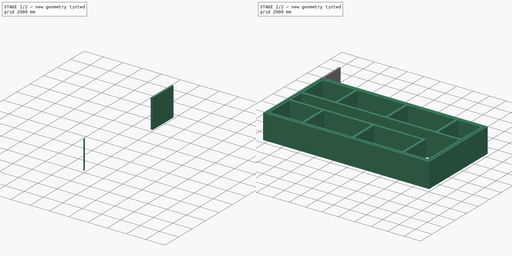
[diagram: build sequence overview — one tinted view per stage of 2, left to right]
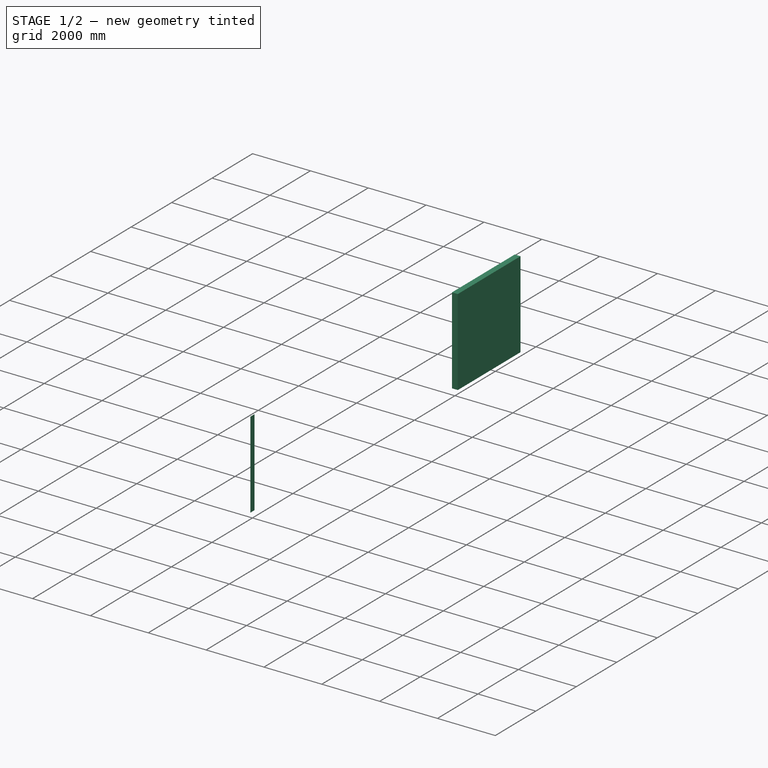
[diagram: stage 1 of 2 — iso view after this stage's code; geometry added in this stage tinted green]
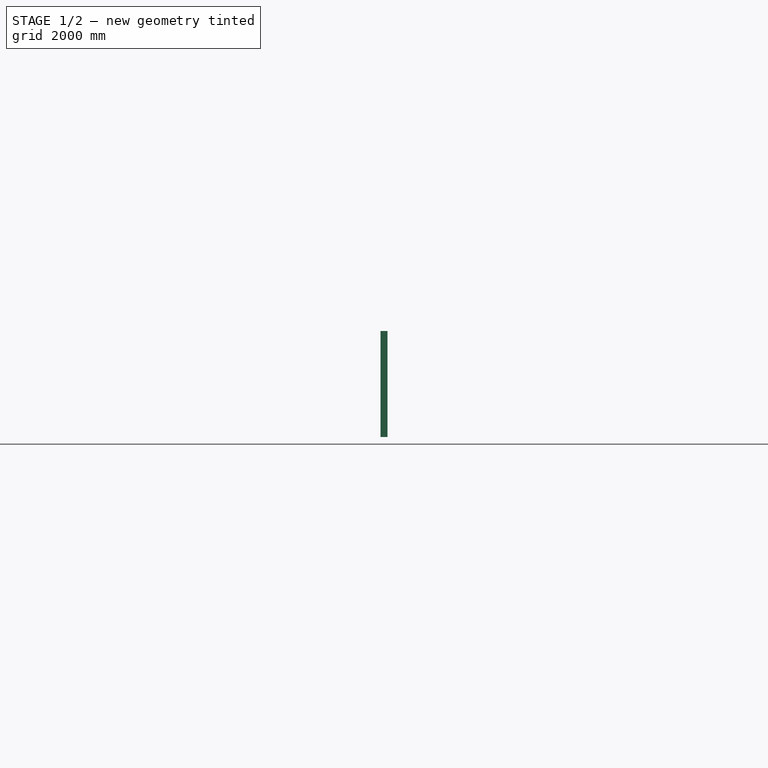
[diagram: stage 1 of 2 — front view after this stage's code; geometry added in this stage tinted green]
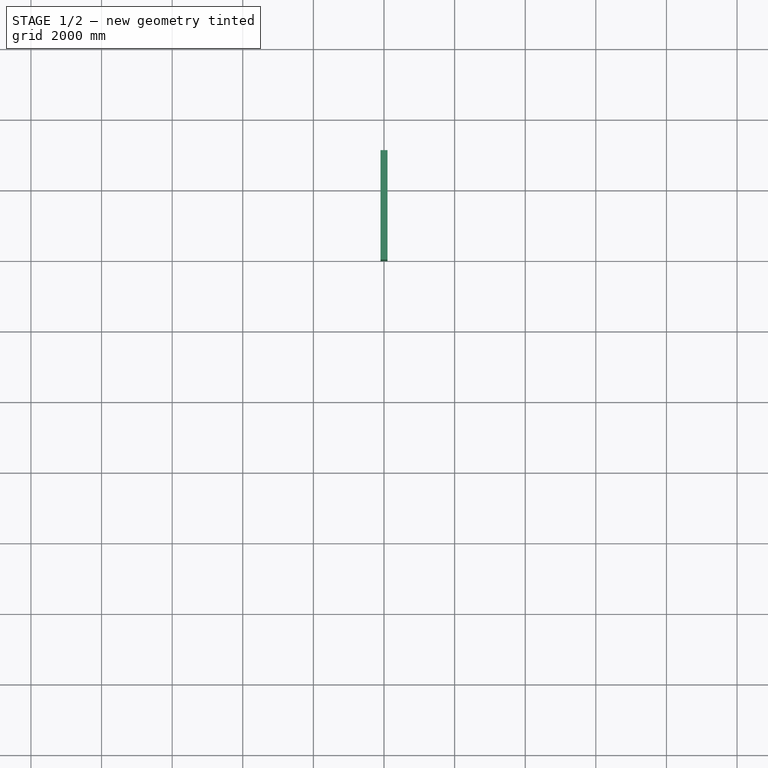
[diagram: stage 1 of 2 — top view after this stage's code; geometry added in this stage tinted green]
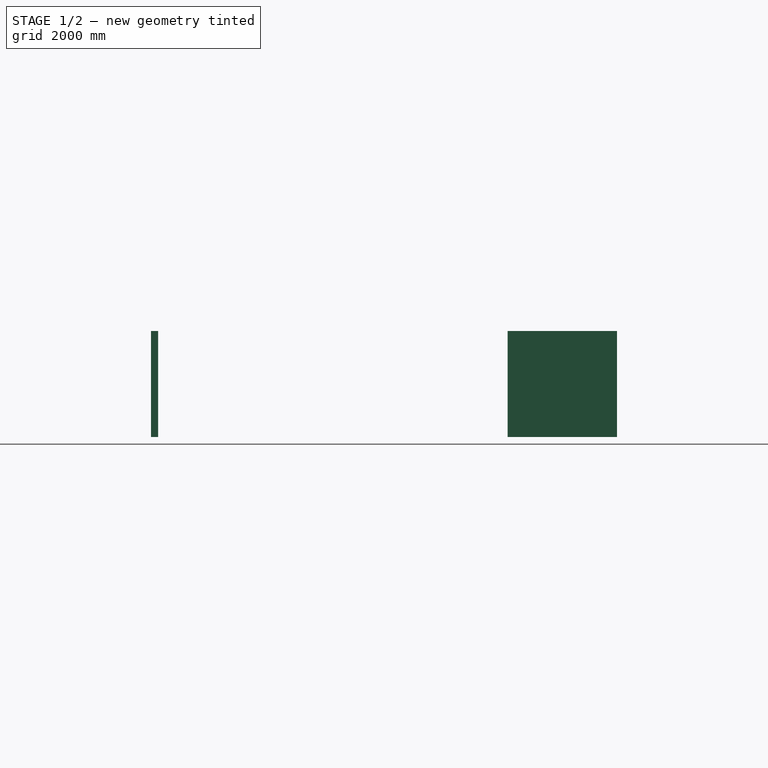
[diagram: stage 1 of 2 — right view after this stage's code; geometry added in this stage tinted green]
FCSTD DOCUMENT  (FreeCAD 1.0R39109 (Git))
Label: udemyProjectModulemetricFREECAD
License: All rights reserved
objects: Part::Part2DObjectPython×163, Part::FeaturePython×12, App::FeaturePython×10, Sketcher::SketchObject×1, TechDraw::DrawSVGTemplate×1, TechDraw::DrawPage×1, App::DocumentObjectGroup×1, App::DocumentObjectGroupPython×1
note: 177 computed .brp shape members not serialized (recipe doc carries the construction recipe); baked Part::Feature solids carry a one-line shape summary decoded from their .brp

FEATURE [Part::FeaturePython] Wall002  # Arch/BIM 166 (typed FeaturePython)
  Align = 2
  ArchSketchData = true
  Area = 0
  BlockHeight = 0
  BlockLength = 0
  CountBroken = 0
  CountEntire = 0
  Face = 0
  Height = 3000
  HorizontalArea = 200
  IfcData = attributes={"GlobalId": {"name": "GlobalId", "type": "IfcGloballyUniqueId", "is_enum": false, "enum_values": []}, "Description": {"... (+533 chars omitted),+1 more (map truncated)
  IfcType = 166
  Joint = 0
  Length = 0
  MakeBlocks = false
  MoveBase = false
  MoveWithHost = false
  Normal = (0,0,0)
  OffsetFirst = 0
  OffsetSecond = 0
  PerimeterLength = 402
  PredefinedType = 0
  VerticalArea = 1206000
  Width = 200
FEATURE [Part::FeaturePython] Wall003  # Arch/BIM 166 (typed FeaturePython)
  Align = 2
  ArchSketchData = true
  Area = 9.28875e+06
  Base = -> Line110
  BlockHeight = 0
  BlockLength = 0
  CountBroken = 0
  CountEntire = 0
  Face = 0
  Height = 3000
  HorizontalArea = 619250
  IfcData = attributes={"GlobalId": {"name": "GlobalId", "type": "IfcGloballyUniqueId", "is_enum": false, "enum_values": []}, "Description": {"... (+533 chars omitted),+1 more (map truncated)
  IfcType = 166
  Joint = 0
  Length = 3096.25
  MakeBlocks = false
  MoveBase = false
  MoveWithHost = false
  Normal = (0,0,0)
  OffsetFirst = 0
  OffsetSecond = 0
  PerimeterLength = 6592.5
  PredefinedType = 0
  VerticalArea = 1.97775e+07
  Width = 200
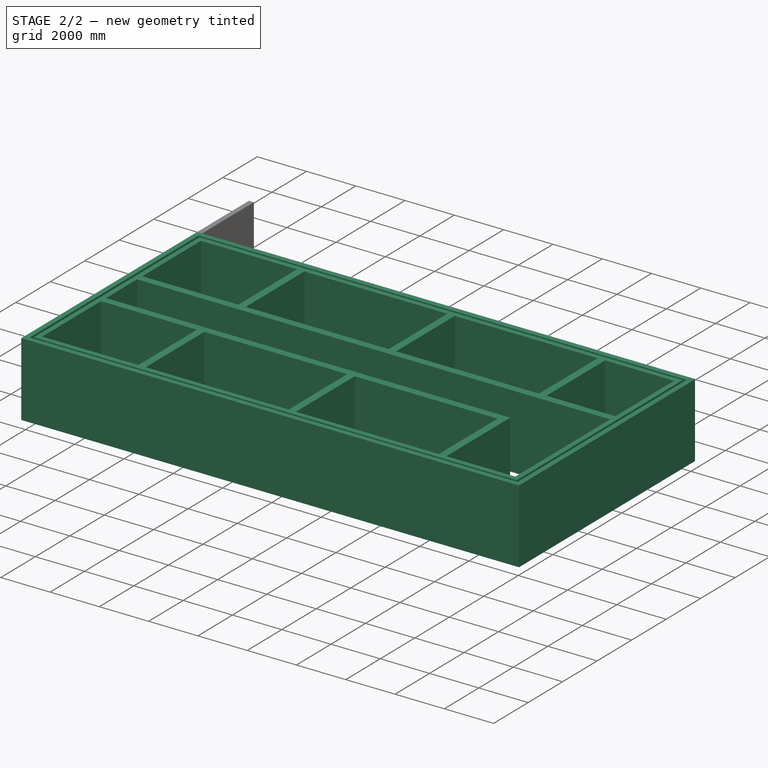
[diagram: stage 2 of 2 — iso view after this stage's code; geometry added in this stage tinted green]
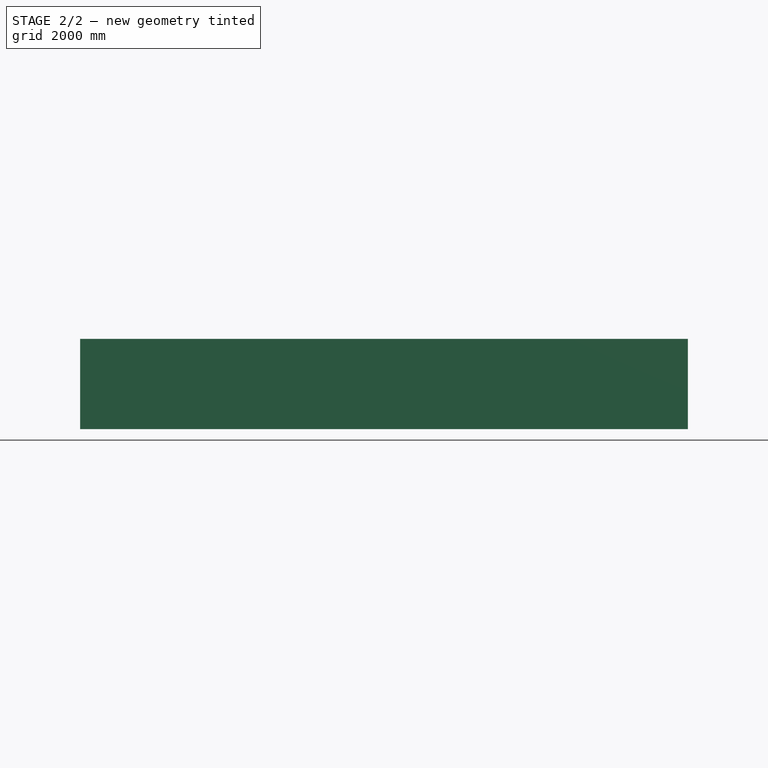
[diagram: stage 2 of 2 — front view after this stage's code; geometry added in this stage tinted green]
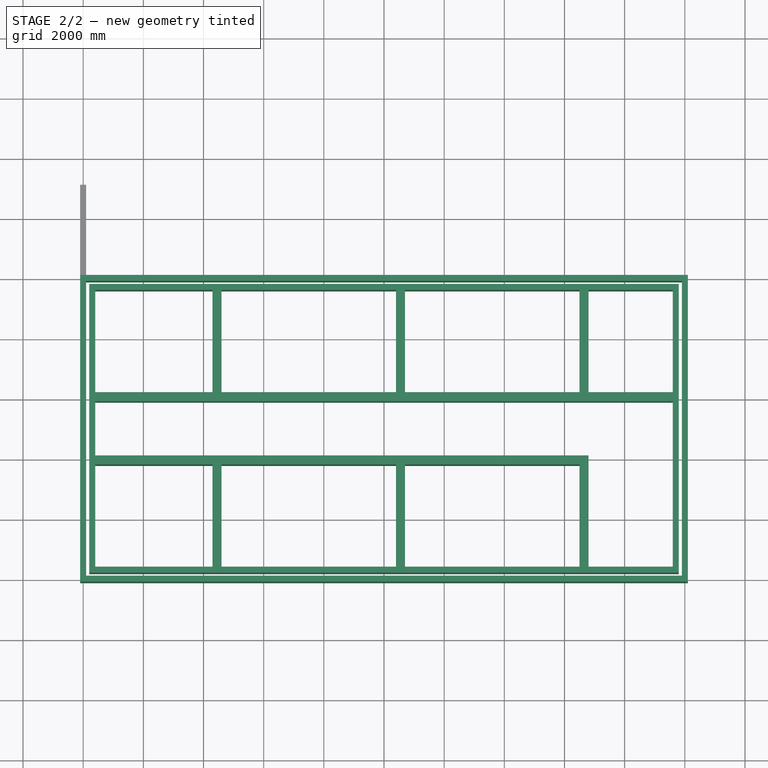
[diagram: stage 2 of 2 — top view after this stage's code; geometry added in this stage tinted green]
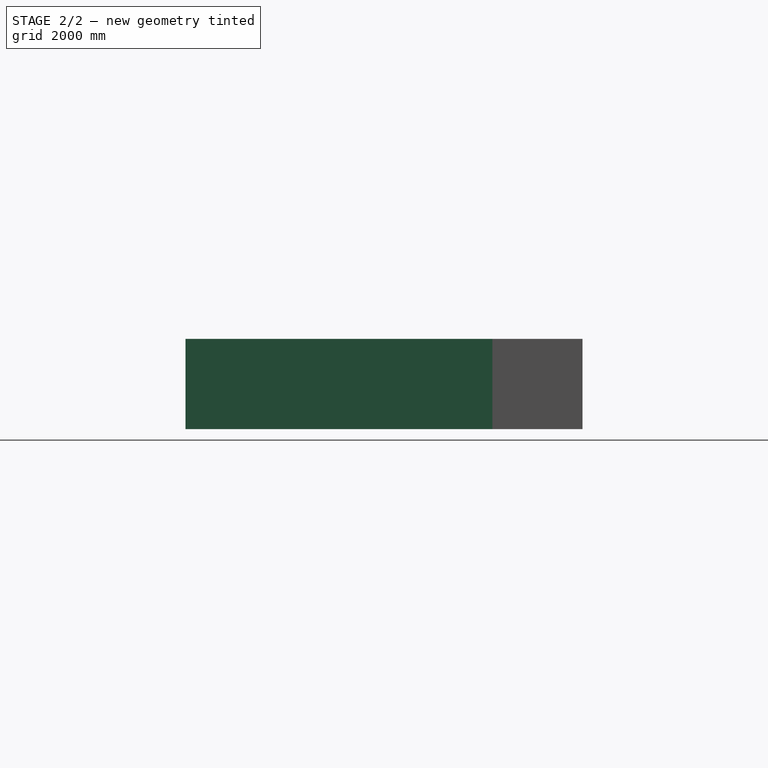
[diagram: stage 2 of 2 — right view after this stage's code; geometry added in this stage tinted green]
FEATURE [Part::FeaturePython] IfcObject003  label="Building"  # WARN: FeaturePython — macro-defined, semantics opaque (R4)
  CompositionType = -1
  ElevationOfRefHeight = 0
  ElevationOfTerrain = 0
  GlobalId = 3ZR71QWXn8eBFc1LVgS9kI
  IfcClass = IfcBuilding
  ShapeMode = 0
  StepId = 23
  expr: Label2 = Description
FEATURE [Part::FeaturePython] IfcObject002  label="Site"  # WARN: FeaturePython — macro-defined, semantics opaque (R4)
  CompositionType = -1
  GlobalId = 3sOkh7jo544A_tfJeOJWge
  Group = -> [IfcObject003]
  IfcClass = IfcSite
  RefElevation = 0
  ShapeMode = 0
  StepId = 21
  expr: Label2 = Description
FEATURE [Part::FeaturePython] IfcObject001  label="_IfcProject001"  # WARN: FeaturePython — macro-defined, semantics opaque (R4)
  GlobalId = 2x7dZLKtn7CQsyYiZBJNY$
  Group = -> [IfcObject002]
  IfcClass = IfcProject
  IfcFilePath = <userpath>/github/websiteRepository/udemyCADcert/udemyProjectModule1metricFREECAD.ifc
  Modified = false
  Schema = 1
  ShapeMode = 0
  StepId = 1
  expr: Label2 = Description
FEATURE [Sketcher::SketchObject] Sketch  label="Sketch - Floorplan"
  ArcFitTolerance = 1e-06
  FullyConstrained = false
  MakeInternals = false
  sketch-geometry (38):
    g0: LineSegment StartX=0 StartY=0 StartZ=0 EndX=20000 EndY=0 EndZ=0
    g1: LineSegment StartX=20000 StartY=0 StartZ=0 EndX=20000 EndY=10000 EndZ=0
    g2: LineSegment StartX=20000 StartY=10000 StartZ=0 EndX=0 EndY=10000 EndZ=0
    g3: LineSegment StartX=0 StartY=10000 StartZ=0 EndX=0 EndY=0 EndZ=0
    g4: LineSegment [constr] StartX=0 StartY=5000 StartZ=0 EndX=300 EndY=5000 EndZ=0
    g5: LineSegment [constr] StartX=10000 StartY=10000 StartZ=0 EndX=10000 EndY=9700 EndZ=0
    g6: LineSegment [constr] StartX=10000 StartY=0 StartZ=0 EndX=10000 EndY=300 EndZ=0
    g7: LineSegment [constr] StartX=20000 StartY=5000 StartZ=0 EndX=19700 EndY=5000 EndZ=0
    g8: LineSegment StartX=300 StartY=300 StartZ=0 EndX=19700 EndY=300 EndZ=0
    g9: LineSegment StartX=19700 StartY=300 StartZ=0 EndX=19700 EndY=9700 EndZ=0
    g10: LineSegment StartX=19700 StartY=9700 StartZ=0 EndX=300 EndY=9700 EndZ=0
    g11: LineSegment StartX=300 StartY=9700 StartZ=0 EndX=300 EndY=300 EndZ=0
    g12: LineSegment [constr] StartX=300 StartY=9700 StartZ=0 EndX=4500 EndY=9700 EndZ=0
    g13: LineSegment StartX=4500 StartY=9700 StartZ=0 EndX=4500 EndY=6100 EndZ=0
    g14: LineSegment [constr] StartX=4500 StartY=9700 StartZ=0 EndX=4400 EndY=9700 EndZ=0
    g15: LineSegment StartX=4400 StartY=9700 StartZ=0 EndX=4400 EndY=6100 EndZ=0
    g16: LineSegment StartX=10600 StartY=9700 StartZ=0 EndX=10600 EndY=6100 EndZ=0
    g17: LineSegment StartX=10500 StartY=9700 StartZ=0 EndX=10500 EndY=6100 EndZ=0
    g18: LineSegment StartX=16600 StartY=9700 StartZ=0 EndX=16600 EndY=6100 EndZ=0
    g19: LineSegment StartX=16700 StartY=9700 StartZ=0 EndX=16700 EndY=6100 EndZ=0
    g20: LineSegment StartX=16700 StartY=9700 StartZ=0 EndX=16700 EndY=6100 EndZ=0
    g21: LineSegment StartX=300 StartY=3900 StartZ=0 EndX=4400 EndY=3900 EndZ=0
    g22: LineSegment StartX=300 StartY=4000 StartZ=0 EndX=16700 EndY=4000 EndZ=0
    g23: LineSegment StartX=300 StartY=6100 StartZ=0 EndX=4400 EndY=6100 EndZ=0
    g24: LineSegment StartX=19700 StartY=6000 StartZ=0 EndX=300 EndY=6000 EndZ=0
    g25: LineSegment StartX=4500 StartY=3900 StartZ=0 EndX=4500 EndY=300 EndZ=0
    g26: LineSegment StartX=4500 StartY=6100 StartZ=0 EndX=10500 EndY=6100 EndZ=0
    g27: LineSegment StartX=4400 StartY=3900 StartZ=0 EndX=4400 EndY=300 EndZ=0
    g28: LineSegment StartX=4500 StartY=3900 StartZ=0 EndX=10500 EndY=3900 EndZ=0
    g29: LineSegment StartX=10600 StartY=6100 StartZ=0 EndX=16600 EndY=6100 EndZ=0
    g30: LineSegment StartX=10500 StartY=3900 StartZ=0 EndX=10500 EndY=300 EndZ=0
    g31: LineSegment StartX=10600 StartY=3900 StartZ=0 EndX=10600 EndY=300 EndZ=0
    g32: LineSegment StartX=10600 StartY=3900 StartZ=0 EndX=16600 EndY=3900 EndZ=0
    g33: LineSegment StartX=16600 StartY=3900 StartZ=0 EndX=16600 EndY=300 EndZ=0
    g34: LineSegment StartX=16700 StartY=4000 StartZ=0 EndX=16700 EndY=300 EndZ=0
    g35: LineSegment StartX=16700 StartY=6100 StartZ=0 EndX=19700 EndY=6100 EndZ=0
    g36: LineSegment StartX=16700 StartY=4000 StartZ=0 EndX=16700 EndY=300 EndZ=0
    g37: GeomPoint X=30000 Y=12000 Z=0
  constraints (115):
    c: Coincident(g0,g1)
    c: Coincident(g1,g2)
    c: Coincident(g2,g3)
    c: Coincident(g3,g0)
    c: Horizontal(g0)
    c: Horizontal(g2)
    c: Vertical(g1)
    c: Vertical(g3)
    c: Distance(g1,g3) = 20000
    c: Distance(g0,g2) = 10000
    c: Coincident(g0,g-1)
    c: Distance(g4) = 300
    c: Horizontal(g4)
    c: Symmetric(g3,g3,g4)
    c: Distance(g5) = 300
    c: Symmetric(g2,g2,g5)
    c: Vertical(g5)
    c: Distance(g6) = 300
    c: Symmetric(g0,g0,g6)
    c: Vertical(g6)
    c: Distance(g7) = 300
    c: Symmetric(g1,g1,g7)
    c: Horizontal(g7)
    c: Coincident(g8,g9)
    c: Coincident(g9,g10)
    c: Coincident(g10,g11)
    c: Coincident(g11,g8)
    c: Horizontal(g8)
    c: Horizontal(g10)
    c: Vertical(g9)
    c: Vertical(g11)
    c: PointOnObject(g6,g8)
    c: PointOnObject(g4,g11)
    c: PointOnObject(g5,g10)
    c: PointOnObject(g7,g9)
    c: Horizontal(g12)
    c: Coincident(g12,g10)
    c: Coincident(g13,g12)
    c: Vertical(g13)
    c: Distance(g14) = 100
    c: Horizontal(g14)
    c: Coincident(g14,g12)
    c: Coincident(g15,g14)
    c: PointOnObject(g27,g8)
    c: PointOnObject(g25,g8)
    c: Vertical(g15)
    c: PointOnObject(g16,g10)
    c: PointOnObject(g31,g8)
    c: Vertical(g16)
    c: PointOnObject(g17,g10)
    c: PointOnObject(g30,g8)
    c: Vertical(g17)
    c: Distance(g16,g17) = 100
    c: PointOnObject(g18,g10)
    c: PointOnObject(g33,g8)
    c: Vertical(g18)
    c: Distance(g16,g18) = 6000
    c: Distance(g13,g17) = 6000
    c: Distance(g11,g15) = 4100
    c: PointOnObject(g19,g10)
    c: PointOnObject(g34,g8)
    c: Vertical(g19)
    c: Distance(g19,g18) = 100
    c: PointOnObject(g20,g10)
    c: PointOnObject(g36,g8)
    c: Vertical(g20)
    c: Distance(g9,g20) = 3000
    c: PointOnObject(g21,g11)
    c: Horizontal(g21)
    c: Distance(g8,g21) = 3600
    c: PointOnObject(g22,g11)
    c: Horizontal(g22)
    c: Distance(g22,g21) = 100
    c: PointOnObject(g23,g11)
    c: PointOnObject(g35,g9)
    c: Horizontal(g23)
    c: Distance(g10,g23) = 3600
    c: PointOnObject(g24,g9)
    c: PointOnObject(g24,g11)
    c: Horizontal(g24)
    c: Distance(g23,g24) = 100
    c: PointOnObject(g13,g26)
    c: PointOnObject(g26,g13)
    c: Coincident(g15,g23)
    c: Coincident(g27,g21)
    c: Coincident(g25,g28)
    c: Coincident(g17,g26)
    c: Coincident(g16,g29)
    c: Coincident(g31,g32)
    c: Coincident(g30,g28)
    c: Coincident(g19,g35)
    c: Coincident(g18,g29)
    c: PointOnObject(g36,g22)
    c: Coincident(g33,g32)
    c: Coincident(g22,g34)
    c: Distance(g37,g-2) = 30000
    c: Distance(g37,g-1) = 12000
    c: DistanceX(g31,g32) = 6000
    c: DistanceX(g25,g28) = 6000
    c: Distance(g28,g31) = 100
    c: Distance(g21,g25) = 100
    c: Distance(g13,g24) = 100
    c: Distance(g17,g24) = 100
    c: Distance(g16,g24) = 100
    c: Distance(g20,g24) = 100
    c: Distance(g34,g33) = 100
    c: Distance(g32,g34) = 100
    c: Distance(g31,g22) = 100
    c: Perpendicular(g8,g27)
    c: Perpendicular(g8,g25)
    c: Perpendicular(g18,g29)
    c: Parallel(g32,g8)
    c: Parallel(g34,g9)
    c: Parallel(g30,g11)
    c: Parallel(g35,g24)
FEATURE [App::FeaturePython] Dimension001  label="Width"  # Draft dimension (typed FeaturePython)
  Diameter = false
  Dimline = (20736.7,3669.12,0)
  Direction = (0,0,0)
  Distance = 10000
  End = (17067.6,0,0)
  Normal = (0,0,1)
  Start = (17067.6,10000,0)
FEATURE [App::FeaturePython] Dimension  label="Length"  # Draft dimension (typed FeaturePython)
  Diameter = false
  Dimline = (12989,10793.6,0)
  Direction = (0,0,0)
  Distance = 20000
  End = (20000,8288.52,0)
  Normal = (0,0,1)
  Start = (0,8288.52,0)
FEATURE [Part::Part2DObjectPython] Line  # Draft 2D object (typed FeaturePython)
  Area = 0
  ChamferSize = 0
  Closed = false
  End = (20000,13096.3,0)
  FilletRadius = 0
  Length = 20000
  MakeFace = true
  Placement = pos=(0,13096.3,0) rot=(0,0,1;0rad)
  Points = (2) [(0,0,0),(20000,0,0)]
  Start = (0,13096.3,0)
  Subdivisions = 0
FEATURE [Part::Part2DObjectPython] Line005  # Draft 2D object (typed FeaturePython)
  Area = 0
  ChamferSize = 0
  Closed = false
  End = (20000,23096.3,0)
  FilletRadius = 0
  Length = 20000
  MakeFace = true
  Placement = pos=(0,-5514.39,0) rot=(0,0,1;0rad)
  Points = (2) [(0,28610.6,0),(20000,28610.6,0)]
  Start = (0,23096.3,0)
  Subdivisions = 0
FEATURE [Part::Part2DObjectPython] Line008  # Draft 2D object (typed FeaturePython)
  Area = 0
  ChamferSize = 0
  Closed = false
  End = (19700,22796.3,0)
  FilletRadius = 0
  Length = 19400
  MakeFace = true
  Placement = pos=(0,-5514.39,0) rot=(0,0,1;0rad)
  Points = (2) [(300,28310.6,0),(19700,28310.6,0)]
  Start = (300,22796.3,0)
  Subdivisions = 0
FEATURE [Part::Part2DObjectPython] Line009  # Draft 2D object (typed FeaturePython)
  Area = 0
  ChamferSize = 0
  Closed = false
  End = (300,13396.3,0)
  FilletRadius = 0
  Length = 19400
  MakeFace = true
  Placement = pos=(0,-5514.39,0) rot=(0,0,1;0rad)
  Points = (2) [(19700,18910.6,0),(300,18910.6,0)]
  Start = (19700,13396.3,0)
  Subdivisions = 0
FEATURE [Part::Part2DObjectPython] Line021  # Draft 2D object (typed FeaturePython)
  Area = 0
  ChamferSize = 0
  Closed = false
  End = (16700,22796.3,0)
  FilletRadius = 0
  Length = 3600
  MakeFace = true
  Placement = pos=(0,-5514.39,0) rot=(0,0,1;0rad)
  Points = (2) [(16700,24710.6,0),(16700,28310.6,0)]
  Start = (16700,19196.3,0)
  Subdivisions = 0
FEATURE [Part::Part2DObjectPython] Line025  # Draft 2D object (typed FeaturePython)
  Area = 0
  ChamferSize = 0
  Closed = false
  End = (16700,13396.3,0)
  FilletRadius = 0
  Length = 3700
  MakeFace = true
  Placement = pos=(16700,17096.3,0) rot=(0,0,1;0rad)
  Points = (2) [(0,0,0),(0,-3700,0)]
  Start = (16700,17096.3,0)
  Subdivisions = 0
FEATURE [Part::Part2DObjectPython] Line029  # Draft 2D object (typed FeaturePython)
  Area = 0
  ChamferSize = 0
  Closed = false
  End = (19700,13396.3,0)
  FilletRadius = 0
  Length = 3800
  MakeFace = true
  Placement = pos=(19700,17196.3,0) rot=(0,0,1;0rad)
  Points = (2) [(0,0,0),(0,-3800,0)]
  Start = (19700,17196.3,0)
  Subdivisions = 0
FEATURE [Part::Part2DObjectPython] Line030  # Draft 2D object (typed FeaturePython)
  Area = 0
  ChamferSize = 0
  Closed = false
  End = (19700,22796.3,0)
  FilletRadius = 0
  Length = 3800
  MakeFace = true
  Placement = pos=(19700,18996.3,0) rot=(0,0,1;0rad)
  Points = (2) [(0,0,0),(0,3800,0)]
  Start = (19700,18996.3,0)
  Subdivisions = 0
FEATURE [Part::Part2DObjectPython] Line033  # Draft 2D object (typed FeaturePython)
  Area = 0
  ChamferSize = 0
  Closed = false
  End = (20000,18996.3,0)
  FilletRadius = 0
  Length = 4100
  MakeFace = true
  Placement = pos=(20000,23096.3,0) rot=(0,0,1;0rad)
  Points = (2) [(0,0,0),(0,-4100,0)]
  Start = (20000,23096.3,0)
  Subdivisions = 0
FEATURE [Part::Part2DObjectPython] Line034  # Draft 2D object (typed FeaturePython)
  Area = 0
  ChamferSize = 0
  Closed = false
  End = (20000,17196.3,0)
  FilletRadius = 0
  Length = 4100
  MakeFace = true
  Placement = pos=(20000,13096.3,0) rot=(0,0,1;0rad)
  Points = (2) [(0,0,0),(0,4100,0)]
  Start = (20000,13096.3,0)
  Subdivisions = 0
FEATURE [Part::Part2DObjectPython] Line035  # Draft 2D object (typed FeaturePython)
  Area = 0
  ChamferSize = 0
  Closed = false
  End = (20000,18996.3,0)
  FilletRadius = 0
  Length = 300
  MakeFace = true
  Placement = pos=(19700,18996.3,0) rot=(0,0,1;0rad)
  Points = (2) [(0,0,0),(300,0,0)]
  Start = (19700,18996.3,0)
  Subdivisions = 0
FEATURE [Part::Part2DObjectPython] Line036  # Draft 2D object (typed FeaturePython)
  Area = 0
  ChamferSize = 0
  Closed = false
  End = (19700,17196.3,0)
  FilletRadius = 0
  Length = 300
  MakeFace = true
  Placement = pos=(20000,17196.3,0) rot=(0,0,1;0rad)
  Points = (2) [(0,0,0),(-300,0,0)]
  Start = (20000,17196.3,0)
  Subdivisions = 0
FEATURE [Part::Part2DObjectPython] Line037  # Draft 2D object (typed FeaturePython)
  Area = 0
  ChamferSize = 0
  Closed = false
  End = (300,22796.3,0)
  FilletRadius = 0
  Length = 3800
  MakeFace = true
  Placement = pos=(300,18996.3,0) rot=(0,0,1;0rad)
  Points = (2) [(0,0,0),(0,3800,0)]
  Start = (300,18996.3,0)
  Subdivisions = 0
FEATURE [Part::Part2DObjectPython] Line038  # Draft 2D object (typed FeaturePython)
  Area = 0
  ChamferSize = 0
  Closed = false
  End = (300,13396.3,0)
  FilletRadius = 0
  Length = 3800
  MakeFace = true
  Placement = pos=(300,17196.3,0) rot=(0,0,1;0rad)
  Points = (2) [(0,0,0),(0,-3800,0)]
  Start = (300,17196.3,0)
  Subdivisions = 0
FEATURE [Part::Part2DObjectPython] Line041  # Draft 2D object (typed FeaturePython)
  Area = 0
  ChamferSize = 0
  Closed = false
  End = (0,18996.3,0)
  FilletRadius = 0
  Length = 4100
  MakeFace = true
  Placement = pos=(0,23096.3,0) rot=(0,0,1;0rad)
  Points = (2) [(0,0,0),(0,-4100,0)]
  Start = (0,23096.3,0)
  Subdivisions = 0
FEATURE [Part::Part2DObjectPython] Line042  # Draft 2D object (typed FeaturePython)
  Area = 0
  ChamferSize = 0
  Closed = false
  End = (0,17196.3,0)
  FilletRadius = 0
  Length = 4100
  MakeFace = true
  Placement = pos=(0,13096.3,0) rot=(0,0,1;0rad)
  Points = (2) [(0,0,0),(0,4100,0)]
  Start = (0,13096.3,0)
  Subdivisions = 0
FEATURE [Part::Part2DObjectPython] Line043  # Draft 2D object (typed FeaturePython)
  Area = 0
  ChamferSize = 0
  Closed = false
  End = (300,18996.3,0)
  FilletRadius = 0
  Length = 300
  MakeFace = true
  Placement = pos=(0,18996.3,0) rot=(0,0,1;0rad)
  Points = (2) [(0,0,0),(300,0,0)]
  Start = (0,18996.3,0)
  Subdivisions = 0
FEATURE [Part::Part2DObjectPython] Line044  # Draft 2D object (typed FeaturePython)
  Area = 0
  ChamferSize = 0
  Closed = false
  End = (300,17196.3,0)
  FilletRadius = 0
  Length = 300
  MakeFace = true
  Placement = pos=(0,17196.3,0) rot=(0,0,1;0rad)
  Points = (2) [(0,0,0),(300,0,0)]
  Start = (0,17196.3,0)
  Subdivisions = 0
FEATURE [Part::Part2DObjectPython] Line046  # Draft 2D object (typed FeaturePython)
  Area = 0
  ChamferSize = 0
  Closed = false
  End = (18800,18996.3,0)
  FilletRadius = 0
  Length = 900
  MakeFace = true
  Placement = pos=(19700,18996.3,0) rot=(0,0,1;0rad)
  Points = (2) [(0,0,0),(-900,0,0)]
  Start = (19700,18996.3,0)
  Subdivisions = 0
FEATURE [Part::Part2DObjectPython] Line047  # Draft 2D object (typed FeaturePython)
  Area = 0
  ChamferSize = 0
  Closed = false
  End = (18800,17196.3,0)
  FilletRadius = 0
  Length = 900
  MakeFace = true
  Placement = pos=(19700,17196.3,0) rot=(0,0,1;0rad)
  Points = (2) [(0,0,0),(-900,0,0)]
  Start = (19700,17196.3,0)
  Subdivisions = 0
FEATURE [Part::Part2DObjectPython] Arc  # Draft 2D object (typed FeaturePython)
  Area = 0
  FirstAngle = 90
  LastAngle = 180
  MakeFace = true
  Placement = pos=(19700,17196.3,0) rot=(0,0,1;0rad)
  Radius = 900
FEATURE [Part::Part2DObjectPython] Arc001  # Draft 2D object (typed FeaturePython)
  Area = 0
  FirstAngle = 180
  LastAngle = 270
  MakeFace = true
  Placement = pos=(19700,18996.3,0) rot=(0,0,1;0rad)
  Radius = 900
FEATURE [Part::Part2DObjectPython] Clone2D  label="Line046 (2D)"  # Draft 2D object (typed FeaturePython)
  Fuse = false
  Objects = -> [Line046]
  Placement = pos=(300,17196.3,0) rot=(0,0,1;3.14159rad)
  Scale = (1,1,1)
FEATURE [Part::Part2DObjectPython] Clone2D001  label="Line047 (2D)"  # Draft 2D object (typed FeaturePython)
  Fuse = false
  Objects = -> [Line047]
  Placement = pos=(300,18996.3,0) rot=(0,0,1;3.14159rad)
  Scale = (1,1,1)
FEATURE [Part::Part2DObjectPython] Clone2D002  label="Arc (2D)"  # Draft 2D object (typed FeaturePython)
  Fuse = false
  Objects = -> [Arc]
  Placement = pos=(300,18996.3,0) rot=(0,0,1;3.14159rad)
  Scale = (1,1,1)
FEATURE [Part::Part2DObjectPython] Clone2D003  label="Arc001 (2D)"  # Draft 2D object (typed FeaturePython)
  Fuse = false
  Objects = -> [Arc001]
  Placement = pos=(300,17196.3,0) rot=(0,0,1;3.14159rad)
  Scale = (1,1,1)
FEATURE [TechDraw::DrawSVGTemplate] Template
  EditableTexts = Designed_by_Name=Casey <owner> Kreicar,Drawing_number=Building 01,FC-Date=5/16/25,FC-SC=1 : 1,FC-SH=1 / 1,FC-Title=Udemy Project Module FreeCAD,+3 more (map truncated)
  Height = 210
  Orientation = 1
  Template = <userpath>/github/3Dprinting/freecad/A4_Landscape_TD_LATIMERE.svg
  Width = 297
FEATURE [TechDraw::DrawPage] Page  label="Techincal Drawing"
  KeepUpdated = true
  NextBalloonIndex = 1
  ProjectionType = 0
  Template = -> Template
FEATURE [App::FeaturePython] Layer002  label="ExteriorDoors"  # WARN: FeaturePython — macro-defined, semantics opaque (R4)
  Group = -> [Line047,Arc001,Line046,Arc,Clone2D,Clone2D001,Clone2D002,Clone2D003]
FEATURE [Part::Part2DObjectPython] Line055  # Draft 2D object (typed FeaturePython)
  Area = 0
  ChamferSize = 0
  Closed = false
  End = (4600,19196.3,0)
  FilletRadius = 0
  Length = 100
  MakeFace = true
  Placement = pos=(4500,19196.3,0) rot=(0,0,1;0rad)
  Points = (2) [(0,0,0),(100,0,0)]
  Start = (4500,19196.3,0)
  Subdivisions = 0
FEATURE [Part::Part2DObjectPython] Line056  # Draft 2D object (typed FeaturePython)
  Area = 0
  ChamferSize = 0
  Closed = false
  End = (4300,20096.3,0)
  FilletRadius = 0
  Length = 900
  MakeFace = true
  Placement = pos=(4300,19196.3,0) rot=(0,0,1;0rad)
  Points = (2) [(0,0,0),(0,900,0)]
  Start = (4300,19196.3,0)
  Subdivisions = 0
FEATURE [Part::Part2DObjectPython] Arc002  # Draft 2D object (typed FeaturePython)
  Area = 0
  FirstAngle = 0
  LastAngle = 90
  MakeFace = true
  Placement = pos=(4300,19196.3,0) rot=(0,0,1;1.5708rad)
  Radius = 900
FEATURE [Part::Part2DObjectPython] Line057  # Draft 2D object (typed FeaturePython)
  Area = 0
  ChamferSize = 0
  Closed = false
  End = (10500,19196.3,0)
  FilletRadius = 0
  Length = 5000
  MakeFace = true
  Placement = pos=(5500,19196.3,0) rot=(0,0,1;0rad)
  Points = (2) [(0,0,0),(5000,0,0)]
  Start = (5500,19196.3,0)
  Subdivisions = 0
FEATURE [Part::Part2DObjectPython] Line058  # Draft 2D object (typed FeaturePython)
  Area = 0
  ChamferSize = 0
  Closed = false
  End = (5500,19096.3,0)
  FilletRadius = 0
  Length = 100
  MakeFace = true
  Placement = pos=(5500,19196.3,0) rot=(0,0,1;0rad)
  Points = (2) [(0,0,0),(0,-100,0)]
  Start = (5500,19196.3,0)
  Subdivisions = 0
FEATURE [Part::Part2DObjectPython] Line059  # Draft 2D object (typed FeaturePython)
  Area = 0
  ChamferSize = 0
  Closed = false
  End = (4600,19096.3,0)
  FilletRadius = 0
  Length = 100
  MakeFace = true
  Placement = pos=(4600,19196.3,0) rot=(0,0,1;0rad)
  Points = (2) [(0,0,0),(0,-100,0)]
  Start = (4600,19196.3,0)
  Subdivisions = 0
FEATURE [Part::Part2DObjectPython] Line063  # Draft 2D object (typed FeaturePython)
  Area = 0
  ChamferSize = 0
  Closed = false
  End = (10500,16996.3,0)
  FilletRadius = 0
  Length = 5000
  MakeFace = true
  Placement = pos=(5500,16996.3,0) rot=(0,0,1;0rad)
  Points = (2) [(0,0,0),(5000,0,0)]
  Start = (5500,16996.3,0)
  Subdivisions = 0
FEATURE [Part::Part2DObjectPython] Line065  # Draft 2D object (typed FeaturePython)
  Area = 0
  ChamferSize = 0
  Closed = false
  End = (4600,17096.3,0)
  FilletRadius = 0
  Length = 100
  MakeFace = true
  Placement = pos=(4600,16996.3,0) rot=(0,0,1;0rad)
  Points = (2) [(0,0,0),(0,100,0)]
  Start = (4600,16996.3,0)
  Subdivisions = 0
FEATURE [Part::Part2DObjectPython] Line066  # Draft 2D object (typed FeaturePython)
  Area = 0
  ChamferSize = 0
  Closed = false
  End = (5500,17096.3,0)
  FilletRadius = 0
  Length = 100
  MakeFace = true
  Placement = pos=(5500,16996.3,0) rot=(0,0,1;0rad)
  Points = (2) [(0,0,0),(0,100,0)]
  Start = (5500,16996.3,0)
  Subdivisions = 0
FEATURE [Part::Part2DObjectPython] Clone2D004  label="Arc002 (2D)"  # Draft 2D object (typed FeaturePython)
  Fuse = false
  Objects = -> [Arc002]
  Placement = pos=(16800,19196.3,0) rot=(0,0,1;0rad)
  Scale = (1,1,1)
FEATURE [Part::Part2DObjectPython] Clone2D005  label="Line056 (2D)"  # Draft 2D object (typed FeaturePython)
  Fuse = false
  Objects = -> [Line056]
  Placement = pos=(16800,19196.3,0) rot=(0,0,1;0rad)
  Scale = (1,1,1)
FEATURE [Part::Part2DObjectPython] Line069  # Draft 2D object (typed FeaturePython)
  Area = 0
  ChamferSize = 0
  Closed = false
  End = (16800,19196.3,0)
  FilletRadius = 0
  Length = 100
  MakeFace = true
  Placement = pos=(16700,19196.3,0) rot=(0,0,1;0rad)
  Points = (2) [(0,0,0),(100,0,0)]
  Start = (16700,19196.3,0)
  Subdivisions = 0
FEATURE [Part::Part2DObjectPython] Line070  # Draft 2D object (typed FeaturePython)
  Area = 0
  ChamferSize = 0
  Closed = false
  End = (16600,19196.3,0)
  FilletRadius = 0
  Length = 5000
  MakeFace = true
  Placement = pos=(11600,19196.3,0) rot=(0,0,1;0rad)
  Points = (2) [(0,0,0),(5000,0,0)]
  Start = (11600,19196.3,0)
  Subdivisions = 0
FEATURE [Part::Part2DObjectPython] Line071  # Draft 2D object (typed FeaturePython)
  Area = 0
  ChamferSize = 0
  Closed = false
  End = (10700,19096.3,0)
  FilletRadius = 0
  Length = 100
  MakeFace = true
  Placement = pos=(10700,19196.3,0) rot=(0,0,1;0rad)
  Points = (2) [(0,0,0),(0,-100,0)]
  Start = (10700,19196.3,0)
  Subdivisions = 0
FEATURE [Part::Part2DObjectPython] Line072  # Draft 2D object (typed FeaturePython)
  Area = 0
  ChamferSize = 0
  Closed = false
  End = (11600,19096.3,0)
  FilletRadius = 0
  Length = 100
  MakeFace = true
  Placement = pos=(11600,19196.3,0) rot=(0,0,1;0rad)
  Points = (2) [(0,0,0),(0,-100,0)]
  Start = (11600,19196.3,0)
  Subdivisions = 0
FEATURE [Part::Part2DObjectPython] Line073  # Draft 2D object (typed FeaturePython)
  Area = 0
  ChamferSize = 0
  Closed = false
  End = (10700,19096.3,0)
  FilletRadius = 0
  Length = 5200
  MakeFace = true
  Placement = pos=(5500,19096.3,0) rot=(0,0,1;0rad)
  Points = (2) [(0,0,0),(5200,0,0)]
  Start = (5500,19096.3,0)
  Subdivisions = 0
FEATURE [Part::Part2DObjectPython] Line075  # Draft 2D object (typed FeaturePython)
  Area = 0
  ChamferSize = 0
  Closed = false
  End = (4300,16096.3,0)
  FilletRadius = 0
  Length = 900
  MakeFace = true
  Placement = pos=(4300,16996.3,0) rot=(0,0,1;0rad)
  Points = (2) [(0,0,0),(0,-900,0)]
  Start = (4300,16996.3,0)
  Subdivisions = 0
FEATURE [Part::Part2DObjectPython] Arc003  # Draft 2D object (typed FeaturePython)
  Area = 0
  FirstAngle = 270
  LastAngle = 0
  MakeFace = true
  Placement = pos=(4300,16996.3,0) rot=(0,0,1;4.71239rad)
  Radius = 900
FEATURE [Part::Part2DObjectPython] Clone2D006  label="Line075 (2D)"  # Draft 2D object (typed FeaturePython)
  Fuse = false
  Objects = -> [Line075]
  Placement = pos=(10700,16996.3,0) rot=(0,0,1;0rad)
  Scale = (1,1,1)
FEATURE [Part::Part2DObjectPython] Clone2D007  label="Arc003 (2D)"  # Draft 2D object (typed FeaturePython)
  Fuse = false
  Objects = -> [Arc003]
  Placement = pos=(10700,16996.3,0) rot=(0,0,1;0rad)
  Scale = (1,1,1)
FEATURE [Part::Part2DObjectPython] Line076  # Draft 2D object (typed FeaturePython)
  Area = 0
  ChamferSize = 0
  Closed = false
  End = (10700,16996.3,0)
  FilletRadius = 0
  Length = 100
  MakeFace = true
  Placement = pos=(10600,16996.3,0) rot=(0,0,1;0rad)
  Points = (2) [(0,0,0),(100,0,0)]
  Start = (10600,16996.3,0)
  Subdivisions = 0
FEATURE [Part::Part2DObjectPython] Line077  # Draft 2D object (typed FeaturePython)
  Area = 0
  ChamferSize = 0
  Closed = false
  End = (16600,16996.3,0)
  FilletRadius = 0
  Length = 5000
  MakeFace = true
  Placement = pos=(11600,16996.3,0) rot=(0,0,1;0rad)
  Points = (2) [(0,0,0),(5000,0,0)]
  Start = (11600,16996.3,0)
  Subdivisions = 0
FEATURE [Part::Part2DObjectPython] Line079  # Draft 2D object (typed FeaturePython)
  Area = 0
  ChamferSize = 0
  Closed = false
  End = (11600,17096.3,0)
  FilletRadius = 0
  Length = 100
  MakeFace = true
  Placement = pos=(11600,16996.3,0) rot=(0,0,1;0rad)
  Points = (2) [(0,0,0),(0,100,0)]
  Start = (11600,16996.3,0)
  Subdivisions = 0
FEATURE [Part::Part2DObjectPython] Line080  # Draft 2D object (typed FeaturePython)
  Area = 0
  ChamferSize = 0
  Closed = false
  End = (16700,17096.3,0)
  FilletRadius = 0
  Length = 5100
  MakeFace = true
  Placement = pos=(11600,17096.3,0) rot=(0,0,1;0rad)
  Points = (2) [(0,0,0),(5100,0,0)]
  Start = (11600,17096.3,0)
  Subdivisions = 0
FEATURE [Part::Part2DObjectPython] Line081  # Draft 2D object (typed FeaturePython)
  Area = 0
  ChamferSize = 0
  Closed = false
  End = (5500,17096.3,0)
  FilletRadius = 0
  Length = 5200
  MakeFace = true
  Placement = pos=(10700,17096.3,0) rot=(0,0,1;0rad)
  Points = (2) [(0,0,0),(-5200,0,0)]
  Start = (10700,17096.3,0)
  Subdivisions = 0
FEATURE [Part::Part2DObjectPython] Clone2D008  label="Arc002 (2D) (2D)"  # Draft 2D object (typed FeaturePython)
  Fuse = false
  Objects = -> [Clone2D004]
  Placement = pos=(10700,19196.3,0) rot=(0,0,1;0rad)
  Scale = (1,1,1)
FEATURE [Part::Part2DObjectPython] Clone2D009  label="Line056 (2D) (2D)"  # Draft 2D object (typed FeaturePython)
  Fuse = false
  Objects = -> [Clone2D005]
  Placement = pos=(10700,19196.3,0) rot=(0,0,1;0rad)
  Scale = (1,1,1)
FEATURE [Part::Part2DObjectPython] Clone2D010  label="Line069 (2D)"  # Draft 2D object (typed FeaturePython)
  Fuse = false
  Objects = -> [Line069]
  Placement = pos=(10600,19196.3,0) rot=(0,0,1;0rad)
  Scale = (1,1,1)
FEATURE [Part::Part2DObjectPython] Line082  # Draft 2D object (typed FeaturePython)
  Area = 0
  ChamferSize = 0
  Closed = false
  End = (19700,19196.3,0)
  FilletRadius = 0
  Length = 2000
  MakeFace = true
  Placement = pos=(17700,19196.3,0) rot=(0,0,1;0rad)
  Points = (2) [(0,0,0),(2000,0,0)]
  Start = (17700,19196.3,0)
  Subdivisions = 0
FEATURE [Part::Part2DObjectPython] Line083  # Draft 2D object (typed FeaturePython)
  Area = 0
  ChamferSize = 0
  Closed = false
  End = (16800,19096.3,0)
  FilletRadius = 0
  Length = 100
  MakeFace = true
  Placement = pos=(16800,19196.3,0) rot=(0,0,1;0rad)
  Points = (2) [(0,0,0),(0,-100,0)]
  Start = (16800,19196.3,0)
  Subdivisions = 0
FEATURE [Part::Part2DObjectPython] Line084  # Draft 2D object (typed FeaturePython)
  Area = 0
  ChamferSize = 0
  Closed = false
  End = (17700,19096.3,0)
  FilletRadius = 0
  Length = 100
  MakeFace = true
  Placement = pos=(17700,19196.3,0) rot=(0,0,1;0rad)
  Points = (2) [(0,0,0),(0,-100,0)]
  Start = (17700,19196.3,0)
  Subdivisions = 0
FEATURE [Part::Part2DObjectPython] Line085  # Draft 2D object (typed FeaturePython)
  Area = 0
  ChamferSize = 0
  Closed = false
  End = (19700,19096.3,0)
  FilletRadius = 0
  Length = 2000
  MakeFace = true
  Placement = pos=(17700,19096.3,0) rot=(0,0,1;0rad)
  Points = (2) [(0,0,0),(2000,0,0)]
  Start = (17700,19096.3,0)
  Subdivisions = 0
FEATURE [Part::Part2DObjectPython] Line086  # Draft 2D object (typed FeaturePython)
  Area = 0
  ChamferSize = 0
  Closed = false
  End = (16800,19096.3,0)
  FilletRadius = 0
  Length = 5200
  MakeFace = true
  Placement = pos=(11600,19096.3,0) rot=(0,0,1;0rad)
  Points = (2) [(0,0,0),(5200,0,0)]
  Start = (11600,19096.3,0)
  Subdivisions = 0
FEATURE [Part::Part2DObjectPython] Clone2D011  label="Arc002 (2D)001"  # Draft 2D object (typed FeaturePython)
  Fuse = false
  Objects = -> [Arc002]
  Placement = pos=(4600,19196.3,0) rot=(0,0,1;0rad)
  Scale = (1,1,1)
FEATURE [Part::Part2DObjectPython] Clone2D012  label="Line056 (2D)001"  # Draft 2D object (typed FeaturePython)
  Fuse = false
  Objects = -> [Line056]
  Placement = pos=(4600,19196.3,0) rot=(0,0,1;0rad)
  Scale = (1,1,1)
FEATURE [Part::Part2DObjectPython] Line087  # Draft 2D object (typed FeaturePython)
  Area = 0
  ChamferSize = 0
  Closed = false
  End = (4300,19196.3,0)
  FilletRadius = 0
  Length = 100
  MakeFace = true
  Placement = pos=(4400,19196.3,0) rot=(0,0,1;0rad)
  Points = (2) [(0,0,0),(-100,0,0)]
  Start = (4400,19196.3,0)
  Subdivisions = 0
FEATURE [Part::Part2DObjectPython] Line088  # Draft 2D object (typed FeaturePython)
  Area = 0
  ChamferSize = 0
  Closed = false
  End = (300,19196.3,0)
  FilletRadius = 0
  Length = 3100
  MakeFace = true
  Placement = pos=(3400,19196.3,0) rot=(0,0,1;0rad)
  Points = (2) [(0,0,0),(-3100,0,0)]
  Start = (3400,19196.3,0)
  Subdivisions = 0
FEATURE [Part::Part2DObjectPython] Line089  # Draft 2D object (typed FeaturePython)
  Area = 0
  ChamferSize = 0
  Closed = false
  End = (4300,19096.3,0)
  FilletRadius = 0
  Length = 100
  MakeFace = true
  Placement = pos=(4300,19196.3,0) rot=(0,0,1;0rad)
  Points = (2) [(0,0,0),(0,-100,0)]
  Start = (4300,19196.3,0)
  Subdivisions = 0
FEATURE [Part::Part2DObjectPython] Line090  # Draft 2D object (typed FeaturePython)
  Area = 0
  ChamferSize = 0
  Closed = false
  End = (3400,19096.3,0)
  FilletRadius = 0
  Length = 100
  MakeFace = true
  Placement = pos=(3400,19196.3,0) rot=(0,0,1;0rad)
  Points = (2) [(0,0,0),(0,-100,0)]
  Start = (3400,19196.3,0)
  Subdivisions = 0
FEATURE [Part::Part2DObjectPython] Line091  # Draft 2D object (typed FeaturePython)
  Area = 0
  ChamferSize = 0
  Closed = false
  End = (4600,19096.3,0)
  FilletRadius = 0
  Length = 300
  MakeFace = true
  Placement = pos=(4300,19096.3,0) rot=(0,0,1;0rad)
  Points = (2) [(0,0,0),(300,0,0)]
  Start = (4300,19096.3,0)
  Subdivisions = 0
FEATURE [Part::Part2DObjectPython] Line092  # Draft 2D object (typed FeaturePython)
  Area = 0
  ChamferSize = 0
  Closed = false
  End = (300,19096.3,0)
  FilletRadius = 0
  Length = 3100
  MakeFace = true
  Placement = pos=(3400,19096.3,0) rot=(0,0,1;0rad)
  Points = (2) [(0,0,0),(-3100,0,0)]
  Start = (3400,19096.3,0)
  Subdivisions = 0
FEATURE [Part::Part2DObjectPython] Clone2D013  label="Arc003 (2D)001"  # Draft 2D object (typed FeaturePython)
  Fuse = false
  Objects = -> [Arc003]
  Placement = pos=(4600,16996.3,0) rot=(0,0,1;0rad)
  Scale = (1,1,1)
FEATURE [Part::Part2DObjectPython] Clone2D014  label="Line075 (2D)001"  # Draft 2D object (typed FeaturePython)
  Fuse = false
  Objects = -> [Line075]
  Placement = pos=(4600,16996.3,0) rot=(0,0,1;0rad)
  Scale = (1,1,1)
FEATURE [Part::Part2DObjectPython] Line093  # Draft 2D object (typed FeaturePython)
  Area = 0
  ChamferSize = 0
  Closed = false
  End = (4300,16996.3,0)
  FilletRadius = 0
  Length = 100
  MakeFace = true
  Placement = pos=(4400,16996.3,0) rot=(0,0,1;0rad)
  Points = (2) [(0,0,0),(-100,0,0)]
  Start = (4400,16996.3,0)
  Subdivisions = 0
FEATURE [Part::Part2DObjectPython] Line094  # Draft 2D object (typed FeaturePython)
  Area = 0
  ChamferSize = 0
  Closed = false
  End = (300,16996.3,0)
  FilletRadius = 0
  Length = 3100
  MakeFace = true
  Placement = pos=(3400,16996.3,0) rot=(0,0,1;0rad)
  Points = (2) [(0,0,0),(-3100,0,0)]
  Start = (3400,16996.3,0)
  Subdivisions = 0
FEATURE [Part::Part2DObjectPython] Line095  # Draft 2D object (typed FeaturePython)
  Area = 0
  ChamferSize = 0
  Closed = false
  End = (4300,17096.3,0)
  FilletRadius = 0
  Length = 100
  MakeFace = true
  Placement = pos=(4300,16996.3,0) rot=(0,0,1;0rad)
  Points = (2) [(0,0,0),(0,100,0)]
  Start = (4300,16996.3,0)
  Subdivisions = 0
FEATURE [Part::Part2DObjectPython] Line096  # Draft 2D object (typed FeaturePython)
  Area = 0
  ChamferSize = 0
  Closed = false
  End = (3400,17096.3,0)
  FilletRadius = 0
  Length = 100
  MakeFace = true
  Placement = pos=(3400,16996.3,0) rot=(0,0,1;0rad)
  Points = (2) [(0,0,0),(0,100,0)]
  Start = (3400,16996.3,0)
  Subdivisions = 0
FEATURE [Part::Part2DObjectPython] Line097  # Draft 2D object (typed FeaturePython)
  Area = 0
  ChamferSize = 0
  Closed = false
  End = (4600,17096.3,0)
  FilletRadius = 0
  Length = 300
  MakeFace = true
  Placement = pos=(4300,17096.3,0) rot=(0,0,1;0rad)
  Points = (2) [(0,0,0),(300,0,0)]
  Start = (4300,17096.3,0)
  Subdivisions = 0
FEATURE [Part::Part2DObjectPython] Line098  # Draft 2D object (typed FeaturePython)
  Area = 0
  ChamferSize = 0
  Closed = false
  End = (300,17096.3,0)
  FilletRadius = 0
  Length = 3100
  MakeFace = true
  Placement = pos=(3400,17096.3,0) rot=(0,0,1;0rad)
  Points = (2) [(0,0,0),(-3100,0,0)]
  Start = (3400,17096.3,0)
  Subdivisions = 0
FEATURE [Part::Part2DObjectPython] Clone2D015  label="Line (2D)"  # Draft 2D object (typed FeaturePython)
  Fuse = false
  Objects = -> [Line]
  Placement = pos=(0,26192.5,0) rot=(0,0,1;0rad)
  Scale = (1,1,1)
FEATURE [Part::Part2DObjectPython] Clone2D016  label="Line005 (2D)"  # Draft 2D object (typed FeaturePython)
  Fuse = false
  Objects = -> [Line005]
  Placement = pos=(0,7581.86,0) rot=(0,0,1;0rad)
  Scale = (1,1,1)
FEATURE [Part::Part2DObjectPython] Clone2D017  label="Line008 (2D)"  # Draft 2D object (typed FeaturePython)
  Fuse = false
  Objects = -> [Line008]
  Placement = pos=(0,7581.86,0) rot=(0,0,1;0rad)
  Scale = (1,1,1)
FEATURE [Part::Part2DObjectPython] Clone2D018  label="Line009 (2D)"  # Draft 2D object (typed FeaturePython)
  Fuse = false
  Objects = -> [Line009]
  Placement = pos=(0,7581.86,0) rot=(0,0,1;0rad)
  Scale = (1,1,1)
FEATURE [Part::Part2DObjectPython] Clone2D019  label="Line016 (2D)"  # Draft 2D object (typed FeaturePython)
  Fuse = false
  Placement = pos=(0,7581.86,0) rot=(0,0,1;0rad)
  Scale = (1,1,1)
FEATURE [Part::Part2DObjectPython] Clone2D020  label="Line017 (2D)"  # Draft 2D object (typed FeaturePython)
  Fuse = false
  Placement = pos=(0,7581.86,0) rot=(0,0,1;0rad)
  Scale = (1,1,1)
FEATURE [Part::Part2DObjectPython] Clone2D021  label="Line018 (2D)"  # Draft 2D object (typed FeaturePython)
  Fuse = false
  Placement = pos=(0,7581.86,0) rot=(0,0,1;0rad)
  Scale = (1,1,1)
FEATURE [Part::Part2DObjectPython] Clone2D022  label="Line019 (2D)"  # Draft 2D object (typed FeaturePython)
  Fuse = false
  Placement = pos=(0,7581.86,0) rot=(0,0,1;0rad)
  Scale = (1,1,1)
FEATURE [Part::Part2DObjectPython] Clone2D025  label="Line025 (2D)"  # Draft 2D object (typed FeaturePython)
  Fuse = false
  Objects = -> [Line025]
  Placement = pos=(16700,30192.5,0) rot=(0,0,1;0rad)
  Scale = (1,1,1)
FEATURE [Part::Part2DObjectPython] Clone2D038  label="Line055 (2D)"  # Draft 2D object (typed FeaturePython)
  Fuse = false
  Objects = -> [Line055]
  Placement = pos=(4500,32292.5,0) rot=(0,0,1;0rad)
  Scale = (1,1,1)
FEATURE [Part::Part2DObjectPython] Clone2D039  label="Line056 (2D)002"  # Draft 2D object (typed FeaturePython)
  Fuse = false
  Objects = -> [Line056]
  Placement = pos=(4300,32292.5,0) rot=(0,0,1;0rad)
  Scale = (1,1,1)
FEATURE [Part::Part2DObjectPython] Clone2D040  label="Arc002 (2D)002"  # Draft 2D object (typed FeaturePython)
  Fuse = false
  Objects = -> [Arc002]
  Placement = pos=(4300,32292.5,0) rot=(0,0,1;1.5708rad)
  Scale = (1,1,1)
FEATURE [Part::Part2DObjectPython] Clone2D041  label="Line057 (2D)"  # Draft 2D object (typed FeaturePython)
  Fuse = false
  Objects = -> [Line057]
  Placement = pos=(5500,32292.5,0) rot=(0,0,1;0rad)
  Scale = (1,1,1)
FEATURE [Part::Part2DObjectPython] Clone2D042  label="Line058 (2D)"  # Draft 2D object (typed FeaturePython)
  Fuse = false
  Objects = -> [Line058]
  Placement = pos=(5500,32292.5,0) rot=(0,0,1;0rad)
  Scale = (1,1,1)
FEATURE [Part::Part2DObjectPython] Clone2D043  label="Line059 (2D)"  # Draft 2D object (typed FeaturePython)
  Fuse = false
  Objects = -> [Line059]
  Placement = pos=(4600,32292.5,0) rot=(0,0,1;0rad)
  Scale = (1,1,1)
FEATURE [Part::Part2DObjectPython] Clone2D044  label="Line063 (2D)"  # Draft 2D object (typed FeaturePython)
  Fuse = false
  Objects = -> [Line063]
  Placement = pos=(5500,30092.5,0) rot=(0,0,1;0rad)
  Scale = (1,1,1)
FEATURE [Part::Part2DObjectPython] Clone2D045  label="Line065 (2D)"  # Draft 2D object (typed FeaturePython)
  Fuse = false
  Objects = -> [Line065]
  Placement = pos=(4600,30092.5,0) rot=(0,0,1;0rad)
  Scale = (1,1,1)
FEATURE [Part::Part2DObjectPython] Clone2D046  label="Line066 (2D)"  # Draft 2D object (typed FeaturePython)
  Fuse = false
  Objects = -> [Line066]
  Placement = pos=(5500,30092.5,0) rot=(0,0,1;0rad)
  Scale = (1,1,1)
FEATURE [Part::Part2DObjectPython] Clone2D051  label="Line071 (2D)"  # Draft 2D object (typed FeaturePython)
  Fuse = false
  Objects = -> [Line071]
  Placement = pos=(10700,32292.5,0) rot=(0,0,1;0rad)
  Scale = (1,1,1)
FEATURE [Part::Part2DObjectPython] Clone2D052  label="Line072 (2D)"  # Draft 2D object (typed FeaturePython)
  Fuse = false
  Objects = -> [Line072]
  Placement = pos=(11600,32292.5,0) rot=(0,0,1;0rad)
  Scale = (1,1,1)
FEATURE [Part::Part2DObjectPython] Clone2D053  label="Line073 (2D)"  # Draft 2D object (typed FeaturePython)
  Fuse = false
  Objects = -> [Line073]
  Placement = pos=(5500,32192.5,0) rot=(0,0,1;0rad)
  Scale = (1,1,1)
FEATURE [Part::Part2DObjectPython] Clone2D054  label="Line075 (2D)002"  # Draft 2D object (typed FeaturePython)
  Fuse = false
  Objects = -> [Line075]
  Placement = pos=(4300,30092.5,0) rot=(0,0,1;0rad)
  Scale = (1,1,1)
FEATURE [Part::Part2DObjectPython] Clone2D055  label="Arc003 (2D)002"  # Draft 2D object (typed FeaturePython)
  Fuse = false
  Objects = -> [Arc003]
  Placement = pos=(4300,30092.5,0) rot=(0,0,1;4.71239rad)
  Scale = (1,1,1)
FEATURE [Part::Part2DObjectPython] Clone2D056  label="Line075 (2D) (2D)"  # Draft 2D object (typed FeaturePython)
  Fuse = false
  Objects = -> [Clone2D006]
  Placement = pos=(10700,30092.5,0) rot=(0,0,1;0rad)
  Scale = (1,1,1)
FEATURE [Part::Part2DObjectPython] Clone2D057  label="Arc003 (2D) (2D)"  # Draft 2D object (typed FeaturePython)
  Fuse = false
  Objects = -> [Clone2D007]
  Placement = pos=(10700,30092.5,0) rot=(0,0,1;0rad)
  Scale = (1,1,1)
FEATURE [Part::Part2DObjectPython] Clone2D058  label="Line076 (2D)"  # Draft 2D object (typed FeaturePython)
  Fuse = false
  Objects = -> [Line076]
  Placement = pos=(10600,30092.5,0) rot=(0,0,1;0rad)
  Scale = (1,1,1)
FEATURE [Part::Part2DObjectPython] Clone2D060  label="Line079 (2D)"  # Draft 2D object (typed FeaturePython)
  Fuse = false
  Objects = -> [Line079]
  Placement = pos=(11600,30092.5,0) rot=(0,0,1;0rad)
  Scale = (1,1,1)
FEATURE [Part::Part2DObjectPython] Clone2D061  label="Line080 (2D)"  # Draft 2D object (typed FeaturePython)
  Fuse = false
  Objects = -> [Line080]
  Placement = pos=(11600,30192.5,0) rot=(0,0,1;0rad)
  Scale = (1,1,1)
FEATURE [Part::Part2DObjectPython] Clone2D062  label="Line081 (2D)"  # Draft 2D object (typed FeaturePython)
  Fuse = false
  Objects = -> [Line081]
  Placement = pos=(10700,30192.5,0) rot=(0,0,1;0rad)
  Scale = (1,1,1)
FEATURE [Part::Part2DObjectPython] Clone2D063  label="Arc002 (2D) (2D) (2D)"  # Draft 2D object (typed FeaturePython)
  Fuse = false
  Objects = -> [Clone2D008]
  Placement = pos=(10700,32292.5,0) rot=(0,0,1;0rad)
  Scale = (1,1,1)
FEATURE [Part::Part2DObjectPython] Clone2D064  label="Line056 (2D) (2D) (2D)"  # Draft 2D object (typed FeaturePython)
  Fuse = false
  Objects = -> [Clone2D009]
  Placement = pos=(10700,32292.5,0) rot=(0,0,1;0rad)
  Scale = (1,1,1)
FEATURE [Part::Part2DObjectPython] Clone2D065  label="Line069 (2D) (2D)"  # Draft 2D object (typed FeaturePython)
  Fuse = false
  Objects = -> [Clone2D010]
  Placement = pos=(10600,32292.5,0) rot=(0,0,1;0rad)
  Scale = (1,1,1)
FEATURE [Part::Part2DObjectPython] Clone2D071  label="Arc002 (2D)001 (2D)"  # Draft 2D object (typed FeaturePython)
  Fuse = false
  Objects = -> [Clone2D011]
  Placement = pos=(4600,32292.5,0) rot=(0,0,1;0rad)
  Scale = (1,1,1)
FEATURE [Part::Part2DObjectPython] Clone2D072  label="Line056 (2D)001 (2D)"  # Draft 2D object (typed FeaturePython)
  Fuse = false
  Objects = -> [Clone2D012]
  Placement = pos=(4600,32292.5,0) rot=(0,0,1;0rad)
  Scale = (1,1,1)
FEATURE [Part::Part2DObjectPython] Clone2D073  label="Line087 (2D)"  # Draft 2D object (typed FeaturePython)
  Fuse = false
  Objects = -> [Line087]
  Placement = pos=(4400,32292.5,0) rot=(0,0,1;0rad)
  Scale = (1,1,1)
FEATURE [Part::Part2DObjectPython] Clone2D074  label="Line088 (2D)"  # Draft 2D object (typed FeaturePython)
  Fuse = false
  Objects = -> [Line088]
  Placement = pos=(3400,32292.5,0) rot=(0,0,1;0rad)
  Scale = (1,1,1)
FEATURE [Part::Part2DObjectPython] Clone2D075  label="Line089 (2D)"  # Draft 2D object (typed FeaturePython)
  Fuse = false
  Objects = -> [Line089]
  Placement = pos=(4300,32292.5,0) rot=(0,0,1;0rad)
  Scale = (1,1,1)
FEATURE [Part::Part2DObjectPython] Clone2D076  label="Line090 (2D)"  # Draft 2D object (typed FeaturePython)
  Fuse = false
  Objects = -> [Line090]
  Placement = pos=(3400,32292.5,0) rot=(0,0,1;0rad)
  Scale = (1,1,1)
FEATURE [Part::Part2DObjectPython] Clone2D077  label="Line091 (2D)"  # Draft 2D object (typed FeaturePython)
  Fuse = false
  Objects = -> [Line091]
  Placement = pos=(4300,32192.5,0) rot=(0,0,1;0rad)
  Scale = (1,1,1)
FEATURE [Part::Part2DObjectPython] Clone2D078  label="Line092 (2D)"  # Draft 2D object (typed FeaturePython)
  Fuse = false
  Objects = -> [Line092]
  Placement = pos=(3400,32192.5,0) rot=(0,0,1;0rad)
  Scale = (1,1,1)
FEATURE [Part::Part2DObjectPython] Clone2D079  label="Arc003 (2D)001 (2D)"  # Draft 2D object (typed FeaturePython)
  Fuse = false
  Objects = -> [Clone2D013]
  Placement = pos=(4600,30092.5,0) rot=(0,0,1;0rad)
  Scale = (1,1,1)
FEATURE [Part::Part2DObjectPython] Clone2D080  label="Line075 (2D)001 (2D)"  # Draft 2D object (typed FeaturePython)
  Fuse = false
  Objects = -> [Clone2D014]
  Placement = pos=(4600,30092.5,0) rot=(0,0,1;0rad)
  Scale = (1,1,1)
FEATURE [App::FeaturePython] Layer003  label="InteriorDoors"  # WARN: FeaturePython — macro-defined, semantics opaque (R4)
  Group = -> [Arc002,Line056,Arc003,Line075,Clone2D005,Clone2D004,Clone2D007,Clone2D006,Clone2D009,Clone2D008,Clone2D011,Clone2D012,Clone2D013,Clone2D014,Clone2D054,Clone2D055,Clone2D040,Clone2D039,Clone2D056,Clone2D057,Clone2D079,Clone2D080,Clone2D072,Clone2D071,Clone2D064,Clone2D063]
FEATURE [Part::Part2DObjectPython] Clone2D081  label="Line093 (2D)"  # Draft 2D object (typed FeaturePython)
  Fuse = false
  Objects = -> [Line093]
  Placement = pos=(4400,30092.5,0) rot=(0,0,1;0rad)
  Scale = (1,1,1)
FEATURE [Part::Part2DObjectPython] Clone2D082  label="Line094 (2D)"  # Draft 2D object (typed FeaturePython)
  Fuse = false
  Objects = -> [Line094]
  Placement = pos=(3400,30092.5,0) rot=(0,0,1;0rad)
  Scale = (1,1,1)
FEATURE [Part::Part2DObjectPython] Clone2D083  label="Line095 (2D)"  # Draft 2D object (typed FeaturePython)
  Fuse = false
  Objects = -> [Line095]
  Placement = pos=(4300,30092.5,0) rot=(0,0,1;0rad)
  Scale = (1,1,1)
FEATURE [Part::Part2DObjectPython] Clone2D084  label="Line096 (2D)"  # Draft 2D object (typed FeaturePython)
  Fuse = false
  Objects = -> [Line096]
  Placement = pos=(3400,30092.5,0) rot=(0,0,1;0rad)
  Scale = (1,1,1)
FEATURE [Part::Part2DObjectPython] Clone2D085  label="Line097 (2D)"  # Draft 2D object (typed FeaturePython)
  Fuse = false
  Objects = -> [Line097]
  Placement = pos=(4300,30192.5,0) rot=(0,0,1;0rad)
  Scale = (1,1,1)
FEATURE [Part::Part2DObjectPython] Clone2D086  label="Line098 (2D)"  # Draft 2D object (typed FeaturePython)
  Fuse = false
  Objects = -> [Line098]
  Placement = pos=(3400,30192.5,0) rot=(0,0,1;0rad)
  Scale = (1,1,1)
FEATURE [Part::FeaturePython] Clone  label="Line016 (mirrored)001"  # WARN: FeaturePython — macro-defined, semantics opaque (R4)
  AttacherType = Attacher::AttachEngine3D
  Fuse = false
  Placement = pos=(0,13381.9,0) rot=(0,0,1;0rad)
  Scale = (1,1,1)
FEATURE [Part::FeaturePython] Clone001  label="Line017 (mirrored)001"  # WARN: FeaturePython — macro-defined, semantics opaque (R4)
  AttacherType = Attacher::AttachEngine3D
  Fuse = false
  Placement = pos=(0,13381.9,0) rot=(0,0,1;0rad)
  Scale = (1,1,1)
FEATURE [Part::FeaturePython] Clone003  label="Line019 (mirrored)001"  # WARN: FeaturePython — macro-defined, semantics opaque (R4)
  AttacherType = Attacher::AttachEngine3D
  Fuse = false
  Placement = pos=(0,13381.9,0) rot=(0,0,1;0rad)
  Scale = (1,1,1)
FEATURE [Part::FeaturePython] Clone004  label="Line020 (mirrored)001"  # WARN: FeaturePython — macro-defined, semantics opaque (R4)
  AttacherType = Attacher::AttachEngine3D
  Fuse = false
  Placement = pos=(0,13381.9,0) rot=(0,0,1;0rad)
  Scale = (1,1,1)
FEATURE [Part::Part2DObjectPython] Line099  # Draft 2D object (typed FeaturePython)
  Area = 0
  ChamferSize = 0
  Closed = false
  End = (20000,26192.5,0)
  FilletRadius = 0
  Length = 10000
  MakeFace = true
  Placement = pos=(20000,36192.5,0) rot=(0,0,1;0rad)
  Points = (2) [(0,0,0),(0,-10000,0)]
  Start = (20000,36192.5,0)
  Subdivisions = 0
FEATURE [Part::Part2DObjectPython] Line101  # Draft 2D object (typed FeaturePython)
  Area = 0
  ChamferSize = 0
  Closed = false
  End = (300,26492.5,0)
  FilletRadius = 0
  Length = 9400
  MakeFace = true
  Placement = pos=(300,35892.5,0) rot=(0,0,1;0rad)
  Points = (2) [(0,0,0),(0,-9400,0)]
  Start = (300,35892.5,0)
  Subdivisions = 0
FEATURE [Part::Part2DObjectPython] Line102  # Draft 2D object (typed FeaturePython)
  Area = 0
  ChamferSize = 0
  Closed = false
  End = (0,26192.5,0)
  FilletRadius = 0
  Length = 10000
  MakeFace = true
  Placement = pos=(0,36192.5,0) rot=(0,0,1;0rad)
  Points = (2) [(0,0,0),(0,-10000,0)]
  Start = (0,36192.5,0)
  Subdivisions = 0
FEATURE [Part::FeaturePython] Clone002  label="Line018 (mirrored)001"  # WARN: FeaturePython — macro-defined, semantics opaque (R4)
  AttacherType = Attacher::AttachEngine3D
  Fuse = false
  Placement = pos=(0,13381.9,0) rot=(0,0,1;0rad)
  Scale = (1,1,1)
FEATURE [Part::Part2DObjectPython] Line103  # Draft 2D object (typed FeaturePython)
  Area = 0
  ChamferSize = 0
  Closed = false
  End = (4400,26492.5,0)
  FilletRadius = 0
  Length = 3600
  MakeFace = true
  Placement = pos=(4400,30092.5,0) rot=(0,0,1;0rad)
  Points = (2) [(0,0,0),(0,-3600,0)]
  Start = (4400,30092.5,0)
  Subdivisions = 0
FEATURE [Part::Part2DObjectPython] Line104  # Draft 2D object (typed FeaturePython)
  Area = 0
  ChamferSize = 0
  Closed = false
  End = (10500,26492.5,0)
  FilletRadius = 0
  Length = 3600
  MakeFace = true
  Placement = pos=(10500,30092.5,0) rot=(0,0,1;0rad)
  Points = (2) [(0,0,0),(0,-3600,0)]
  Start = (10500,30092.5,0)
  Subdivisions = 0
FEATURE [Part::Part2DObjectPython] Line105  # Draft 2D object (typed FeaturePython)
  Area = 0
  ChamferSize = 0
  Closed = false
  End = (10600,26492.5,0)
  FilletRadius = 0
  Length = 3600
  MakeFace = true
  Placement = pos=(10600,30092.5,0) rot=(0,0,1;0rad)
  Points = (2) [(0,0,0),(0,-3600,0)]
  Start = (10600,30092.5,0)
  Subdivisions = 0
FEATURE [Part::Part2DObjectPython] Line106  # Draft 2D object (typed FeaturePython)
  Area = 0
  ChamferSize = 0
  Closed = false
  End = (16600,26492.5,0)
  FilletRadius = 0
  Length = 3600
  MakeFace = true
  Placement = pos=(16600,30092.5,0) rot=(0,0,1;0rad)
  Points = (2) [(0,0,0),(0,-3600,0)]
  Start = (16600,30092.5,0)
  Subdivisions = 0
FEATURE [Part::Part2DObjectPython] Line107  # Draft 2D object (typed FeaturePython)
  Area = 0
  ChamferSize = 0
  Closed = false
  End = (19700,32192.5,0)
  FilletRadius = 0
  Length = 8100
  MakeFace = true
  Placement = pos=(11600,32192.5,0) rot=(0,0,1;0rad)
  Points = (2) [(0,0,0),(8100,0,0)]
  Start = (11600,32192.5,0)
  Subdivisions = 0
FEATURE [Part::Part2DObjectPython] Line108  # Draft 2D object (typed FeaturePython)
  Area = 0
  ChamferSize = 0
  Closed = false
  End = (19700,32292.5,0)
  FilletRadius = 0
  Length = 8100
  MakeFace = true
  Placement = pos=(11600,32292.5,0) rot=(0,0,1;0rad)
  Points = (2) [(0,0,0),(8100,0,0)]
  Start = (11600,32292.5,0)
  Subdivisions = 0
FEATURE [Part::Part2DObjectPython] Clone2D059  label="Line077 (2D)"  # Draft 2D object (typed FeaturePython)
  Fuse = false
  Objects = -> [Line077]
  Placement = pos=(11600,30092.5,0) rot=(0,0,1;0rad)
  Scale = (1,1,1)
FEATURE [Part::Part2DObjectPython] Line109  # Draft 2D object (typed FeaturePython)
  Area = 0
  ChamferSize = 0
  Closed = false
  End = (16600,13396.3,0)
  FilletRadius = 0
  Length = 3600
  MakeFace = true
  Placement = pos=(16600,16996.3,0) rot=(0,0,1;0rad)
  Points = (2) [(0,0,0),(0,-3600,0)]
  Start = (16600,16996.3,0)
  Subdivisions = 0
FEATURE [App::FeaturePython] Layer004  label="InteriorWalls"  # WARN: FeaturePython — macro-defined, semantics opaque (R4)
  Group = -> [Line055,Line057,Line058,Line059,Line063,Line065,Line066,Line069,Line070,Line071,Line072,Line073,Line076,Line077,Line079,Line080,Line081,Line082,Line083,Line084,Clone2D010,Line085,Line086,Line087,Line088,Line089,Line090,Line091,Line092,Line093,Line094,Line095,Line096,Line097,Line098,Line025,Line021,Clone004,Clone003,Clone001,Clone,Clone002,Line109,Clone2D025,Clone2D038,Clone2D041,Clone2D042,+35 more]
FEATURE [App::FeaturePython] Text  label="First Floor"  # WARN: FeaturePython — macro-defined, semantics opaque (R4)
  Placement = pos=(-6392.26,30701.7,0) rot=(0,0,1;0rad)
  Text = First Floor
FEATURE [App::FeaturePython] Text001  label="Ground Floor"  # WARN: FeaturePython — macro-defined, semantics opaque (R4)
  Placement = pos=(-8236.51,17481,0) rot=(0,0,1;0rad)
  Text = Ground Floor
FEATURE [App::FeaturePython] Layer005  label="Text"  # WARN: FeaturePython — macro-defined, semantics opaque (R4)
  Group = -> [Text,Text001]
FEATURE [Part::Part2DObjectPython] Line110  # Draft 2D object (typed FeaturePython)
  Area = 0
  ChamferSize = 0
  Closed = false
  End = (0,13096.3,0)
  FilletRadius = 0
  Length = 3096.25
  MakeFace = true
  Placement = pos=(0,10000,0) rot=(0,0,1;0rad)
  Points = (2) [(0,0,0),(0,3096.25,0)]
  Start = (0,10000,0)
  Subdivisions = 0
FEATURE [Part::Part2DObjectPython] Clone2D087  label="Line110 (2D)"  # Draft 2D object (typed FeaturePython)
  Fuse = false
  Objects = -> [Line110]
  Placement = pos=(0,23096.3,0) rot=(0,0,1;0rad)
  Scale = (1,1,1)
FEATURE [App::DocumentObjectGroup] Draft_Construction  label="Construction"
  Group = -> [Line110,Clone2D087]
FEATURE [Part::Part2DObjectPython] Line111  # Draft 2D object (typed FeaturePython)
  Area = 0
  ChamferSize = 0
  Closed = false
  End = (18700,14046.3,0)
  FilletRadius = 0
  Length = 2500
  MakeFace = true
  Placement = pos=(18700,16546.3,0) rot=(0,0,1;0rad)
  Points = (2) [(0,0,0),(0,-2500,0)]
  Start = (18700,16546.3,0)
  Subdivisions = 0
FEATURE [Part::Part2DObjectPython] Line112  # Draft 2D object (typed FeaturePython)
  Area = 0
  ChamferSize = 0
  Closed = false
  End = (19700,16546.3,0)
  FilletRadius = 0
  Length = 1000
  MakeFace = true
  Placement = pos=(18700,16546.3,0) rot=(0,0,1;0rad)
  Points = (2) [(0,0,0),(1000,0,0)]
  Start = (18700,16546.3,0)
  Subdivisions = 0
FEATURE [Part::Part2DObjectPython] Line113  # Draft 2D object (typed FeaturePython)
  Area = 0
  ChamferSize = 0
  Closed = false
  End = (19700,14046.3,0)
  FilletRadius = 0
  Length = 2500
  MakeFace = true
  Placement = pos=(19700,16546.3,0) rot=(0,0,1;0rad)
  Points = (2) [(0,0,0),(0,-2500,0)]
  Start = (19700,16546.3,0)
  Subdivisions = 0
FEATURE [Part::Part2DObjectPython] Line114  # Draft 2D object (typed FeaturePython)
  Area = 0
  ChamferSize = 0
  Closed = false
  End = (19700,14046.3,0)
  FilletRadius = 0
  Length = 1000
  MakeFace = true
  Placement = pos=(18700,14046.3,0) rot=(0,0,1;0rad)
  Points = (2) [(0,0,0),(1000,0,0)]
  Start = (18700,14046.3,0)
  Subdivisions = 0
FEATURE [Part::Part2DObjectPython] Line115  # Draft 2D object (typed FeaturePython)
  Area = 0
  ChamferSize = 0
  Closed = false
  End = (19700,14296.3,0)
  FilletRadius = 0
  Length = 1000
  MakeFace = true
  Placement = pos=(-2207.51,30.1221,0) rot=(0,0,1;0rad)
  Points = (2) [(20907.5,14266.1,0),(21907.5,14266.1,0)]
  Start = (18700,14296.3,0)
  Subdivisions = 0
FEATURE [Part::Part2DObjectPython] Line116  # Draft 2D object (typed FeaturePython)
  Area = 0
  ChamferSize = 0
  Closed = false
  End = (19700,14546.3,0)
  FilletRadius = 0
  Length = 1000
  MakeFace = true
  Placement = pos=(-2207.51,30.1221,0) rot=(0,0,1;0rad)
  Points = (2) [(20907.5,14516.1,0),(21907.5,14516.1,0)]
  Start = (18700,14546.3,0)
  Subdivisions = 0
FEATURE [Part::Part2DObjectPython] Line117  # Draft 2D object (typed FeaturePython)
  Area = 0
  ChamferSize = 0
  Closed = false
  End = (19700,14796.3,0)
  FilletRadius = 0
  Length = 1000
  MakeFace = true
  Placement = pos=(-2207.51,30.1221,0) rot=(0,0,1;0rad)
  Points = (2) [(20907.5,14766.1,0),(21907.5,14766.1,0)]
  Start = (18700,14796.3,0)
  Subdivisions = 0
FEATURE [Part::Part2DObjectPython] Line118  # Draft 2D object (typed FeaturePython)
  Area = 0
  ChamferSize = 0
  Closed = false
  End = (19700,15046.3,0)
  FilletRadius = 0
  Length = 1000
  MakeFace = true
  Placement = pos=(-2207.51,30.1221,0) rot=(0,0,1;0rad)
  Points = (2) [(20907.5,15016.1,0),(21907.5,15016.1,0)]
  Start = (18700,15046.3,0)
  Subdivisions = 0
FEATURE [Part::Part2DObjectPython] Line119  # Draft 2D object (typed FeaturePython)
  Area = 0
  ChamferSize = 0
  Closed = false
  End = (19700,15296.3,0)
  FilletRadius = 0
  Length = 1000
  MakeFace = true
  Placement = pos=(-2207.51,30.1221,0) rot=(0,0,1;0rad)
  Points = (2) [(20907.5,15266.1,0),(21907.5,15266.1,0)]
  Start = (18700,15296.3,0)
  Subdivisions = 0
FEATURE [Part::Part2DObjectPython] Line120  # Draft 2D object (typed FeaturePython)
  Area = 0
  ChamferSize = 0
  Closed = false
  End = (19700,15546.3,0)
  FilletRadius = 0
  Length = 1000
  MakeFace = true
  Placement = pos=(-2207.51,30.1221,0) rot=(0,0,1;0rad)
  Points = (2) [(20907.5,15516.1,0),(21907.5,15516.1,0)]
  Start = (18700,15546.3,0)
  Subdivisions = 0
FEATURE [Part::Part2DObjectPython] Line121  # Draft 2D object (typed FeaturePython)
  Area = 0
  ChamferSize = 0
  Closed = false
  End = (19700,15796.3,0)
  FilletRadius = 0
  Length = 1000
  MakeFace = true
  Placement = pos=(-2207.51,30.1221,0) rot=(0,0,1;0rad)
  Points = (2) [(20907.5,15766.1,0),(21907.5,15766.1,0)]
  Start = (18700,15796.3,0)
  Subdivisions = 0
FEATURE [Part::Part2DObjectPython] Line122  # Draft 2D object (typed FeaturePython)
  Area = 0
  ChamferSize = 0
  Closed = false
  End = (19700,16046.3,0)
  FilletRadius = 0
  Length = 1000
  MakeFace = true
  Placement = pos=(-2207.51,30.1221,0) rot=(0,0,1;0rad)
  Points = (2) [(20907.5,16016.1,0),(21907.5,16016.1,0)]
  Start = (18700,16046.3,0)
  Subdivisions = 0
FEATURE [Part::Part2DObjectPython] Line123  # Draft 2D object (typed FeaturePython)
  Area = 0
  ChamferSize = 0
  Closed = false
  End = (19700,16296.3,0)
  FilletRadius = 0
  Length = 1000
  MakeFace = true
  Placement = pos=(-2207.51,30.1221,0) rot=(0,0,1;0rad)
  Points = (2) [(20907.5,16266.1,0),(21907.5,16266.1,0)]
  Start = (18700,16296.3,0)
  Subdivisions = 0
FEATURE [Part::Part2DObjectPython] Clone2D088  label="Line120 (2D)"  # Draft 2D object (typed FeaturePython)
  Fuse = false
  Objects = -> [Line120]
  Placement = pos=(-2207.51,13126.4,0) rot=(0,0,1;0rad)
  Scale = (1,1,1)
FEATURE [Part::Part2DObjectPython] Clone2D089  label="Line115 (2D)"  # Draft 2D object (typed FeaturePython)
  Fuse = false
  Objects = -> [Line115]
  Placement = pos=(-2207.51,13126.4,0) rot=(0,0,1;0rad)
  Scale = (1,1,1)
FEATURE [Part::Part2DObjectPython] Clone2D090  label="Line114 (2D)"  # Draft 2D object (typed FeaturePython)
  Fuse = false
  Objects = -> [Line114]
  Placement = pos=(18700,27142.5,0) rot=(0,0,1;0rad)
  Scale = (1,1,1)
FEATURE [Part::Part2DObjectPython] Clone2D091  label="Line117 (2D)"  # Draft 2D object (typed FeaturePython)
  Fuse = false
  Objects = -> [Line117]
  Placement = pos=(-2207.51,13126.4,0) rot=(0,0,1;0rad)
  Scale = (1,1,1)
FEATURE [Part::Part2DObjectPython] Clone2D092  label="Line113 (2D)"  # Draft 2D object (typed FeaturePython)
  Fuse = false
  Objects = -> [Line113]
  Placement = pos=(19700,29642.5,0) rot=(0,0,1;0rad)
  Scale = (1,1,1)
FEATURE [Part::Part2DObjectPython] Clone2D093  label="Line112 (2D)"  # Draft 2D object (typed FeaturePython)
  Fuse = false
  Objects = -> [Line112]
  Placement = pos=(18700,29642.5,0) rot=(0,0,1;0rad)
  Scale = (1,1,1)
FEATURE [Part::Part2DObjectPython] Clone2D094  label="Line118 (2D)"  # Draft 2D object (typed FeaturePython)
  Fuse = false
  Objects = -> [Line118]
  Placement = pos=(-2207.51,13126.4,0) rot=(0,0,1;0rad)
  Scale = (1,1,1)
FEATURE [Part::Part2DObjectPython] Clone2D095  label="Line116 (2D)"  # Draft 2D object (typed FeaturePython)
  Fuse = false
  Objects = -> [Line116]
  Placement = pos=(-2207.51,13126.4,0) rot=(0,0,1;0rad)
  Scale = (1,1,1)
FEATURE [Part::Part2DObjectPython] Clone2D096  label="Line123 (2D)"  # Draft 2D object (typed FeaturePython)
  Fuse = false
  Objects = -> [Line123]
  Placement = pos=(-2207.51,13126.4,0) rot=(0,0,1;0rad)
  Scale = (1,1,1)
FEATURE [Part::Part2DObjectPython] Clone2D097  label="Line121 (2D)"  # Draft 2D object (typed FeaturePython)
  Fuse = false
  Objects = -> [Line121]
  Placement = pos=(-2207.51,13126.4,0) rot=(0,0,1;0rad)
  Scale = (1,1,1)
FEATURE [Part::Part2DObjectPython] Clone2D098  label="Line119 (2D)"  # Draft 2D object (typed FeaturePython)
  Fuse = false
  Objects = -> [Line119]
  Placement = pos=(-2207.51,13126.4,0) rot=(0,0,1;0rad)
  Scale = (1,1,1)
FEATURE [Part::Part2DObjectPython] Clone2D099  label="Line122 (2D)"  # Draft 2D object (typed FeaturePython)
  Fuse = false
  Objects = -> [Line122]
  Placement = pos=(-2207.51,13126.4,0) rot=(0,0,1;0rad)
  Scale = (1,1,1)
FEATURE [Part::Part2DObjectPython] Clone2D100  label="Line111 (2D)"  # Draft 2D object (typed FeaturePython)
  Fuse = false
  Objects = -> [Line111]
  Placement = pos=(18700,29642.5,0) rot=(0,0,1;0rad)
  Scale = (1,1,1)
FEATURE [App::FeaturePython] Layer006  label="Stairs"  # WARN: FeaturePython — macro-defined, semantics opaque (R4)
  Group = -> [Line120,Line115,Line114,Line117,Line113,Line112,Line118,Line116,Line123,Line121,Line119,Line122,Line111,Clone2D088,Clone2D089,Clone2D090,Clone2D091,Clone2D092,Clone2D093,Clone2D094,Clone2D095,Clone2D096,Clone2D097,Clone2D098,Clone2D099,Clone2D100]
FEATURE [Part::Part2DObjectPython] Line124  # Draft 2D object (typed FeaturePython)
  Area = 0
  ChamferSize = 0
  Closed = false
  End = (19700,35892.5,0.1)
  FilletRadius = 0
  Length = 9400
  MakeFace = true
  Placement = pos=(19700,26492.5,0.1) rot=(0,0,1;0rad)
  Points = (2) [(0,0,0),(0,9400,0)]
  Start = (19700,26492.5,0.1)
  Subdivisions = 0
FEATURE [App::FeaturePython] Layer  label="ExteriorWalls"  # WARN: FeaturePython — macro-defined, semantics opaque (R4)
  Group = -> [Line042,Line037,Line035,Line034,Line030,Line029,Line036,Line009,Line008,Line038,Line043,Line044,Line,Line033,Line041,Line005,Line102,Line101,Line099,Clone2D017,Clone2D015,Clone2D018,Clone2D016,Line124]
FEATURE [App::DocumentObjectGroupPython] LayerContainer  label="Layers"  # scripted group (container) (typed FeaturePython)
  Group = -> [Layer002,Layer,Layer003,Layer004,Layer006,Layer005]
FEATURE [Part::FeaturePython] Wall  # Arch/BIM 166 (typed FeaturePython)
  Align = 2
  ArchSketchData = true
  Area = 717600000
  Base = -> Sketch
  BlockHeight = 0
  BlockLength = 0
  CountBroken = 0
  CountEntire = 0
  Face = 0
  Height = 3000
  HorizontalArea = 0
  IfcData = attributes={"GlobalId": {"name": "GlobalId", "type": "IfcGloballyUniqueId", "is_enum": false, "enum_values": []}, "Description": {"... (+533 chars omitted),+1 more (map truncated)
  IfcType = 166
  Joint = 0
  Length = 239200
  MakeBlocks = false
  MoveBase = false
  MoveWithHost = false
  Normal = (0,0,0)
  OffsetFirst = 0
  OffsetSecond = 0
  PerimeterLength = 0
  PredefinedType = 0
  VerticalArea = 0
  Width = 200
FEATURE [Part::FeaturePython] Wall001  # Arch/BIM 166 (typed FeaturePython)
  Align = 2
  ArchSketchData = true
  Area = 0
  BlockHeight = 0
  BlockLength = 0
  CountBroken = 0
  CountEntire = 0
  Face = 0
  Height = 3000
  HorizontalArea = 200
  IfcData = attributes={"GlobalId": {"name": "GlobalId", "type": "IfcGloballyUniqueId", "is_enum": false, "enum_values": []}, "Description": {"... (+533 chars omitted),+1 more (map truncated)
  IfcType = 166
  Joint = 0
  Length = 0
  MakeBlocks = false
  MoveBase = false
  MoveWithHost = false
  Normal = (0,0,0)
  OffsetFirst = 0
  OffsetSecond = 0
  PerimeterLength = 402
  PredefinedType = 0
  VerticalArea = 1206000
  Width = 200
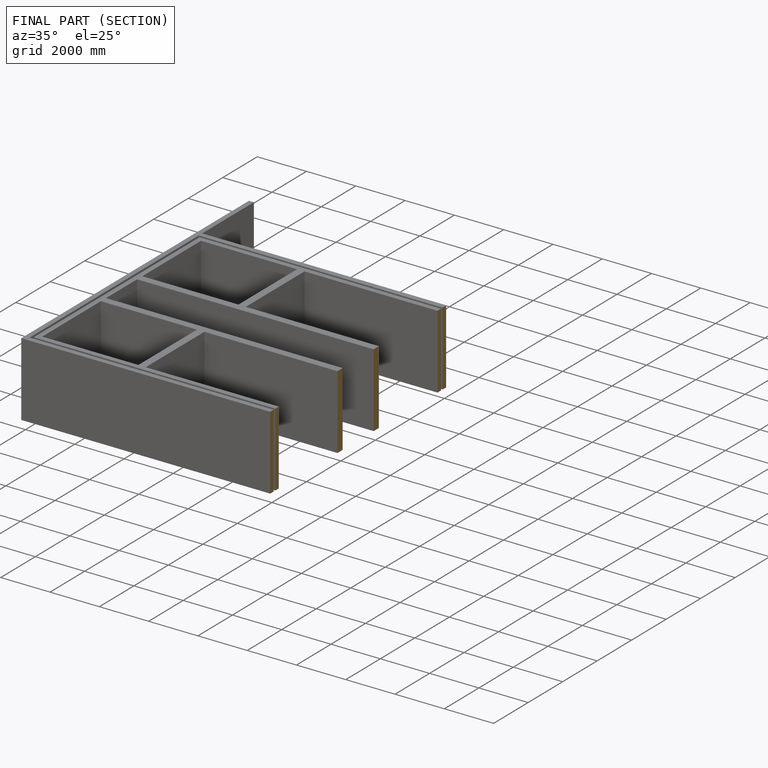
[diagram: finished part — half-section view (interior)]
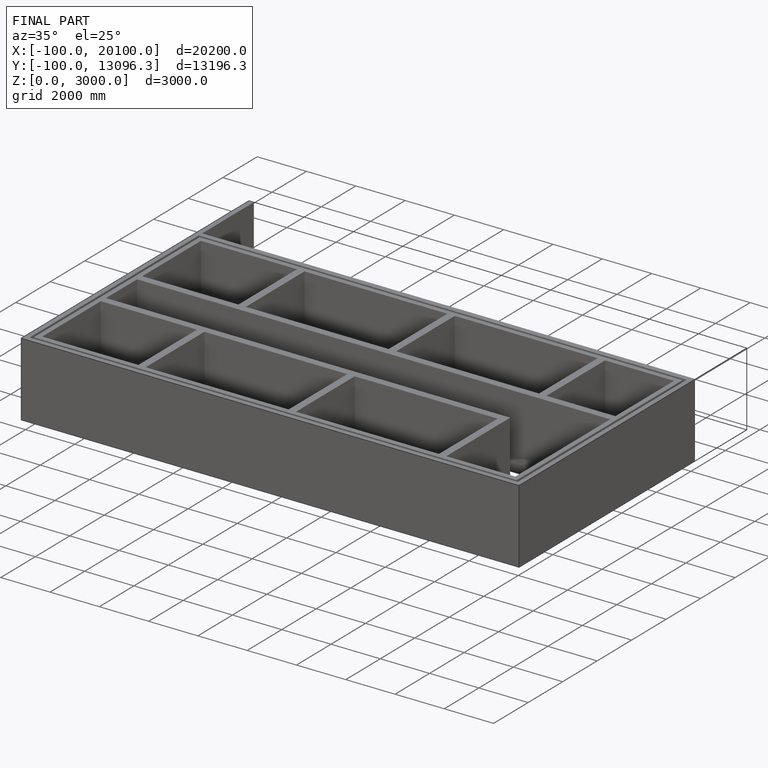
[diagram: finished part — iso view with bounding-box wireframe]
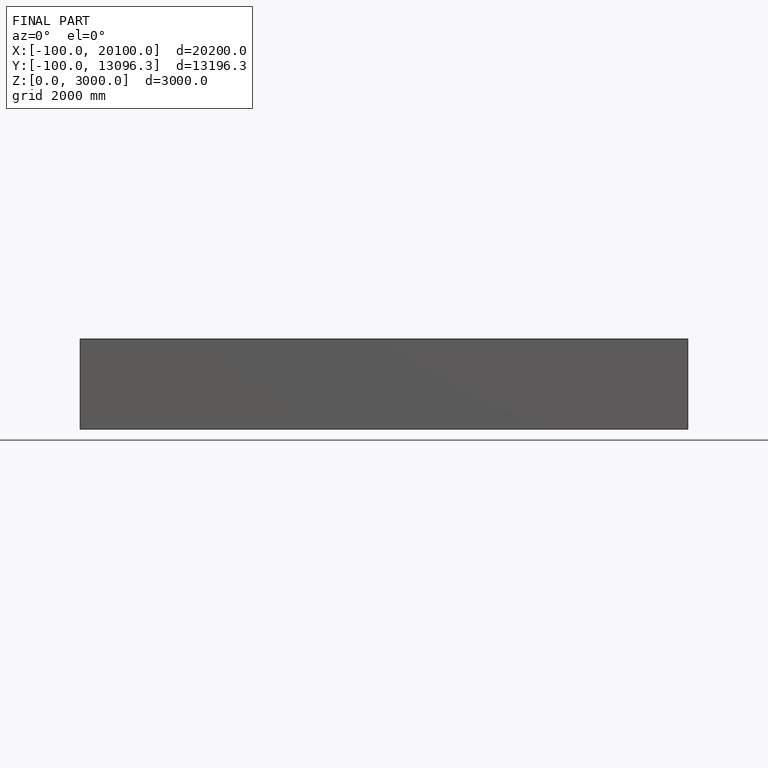
[diagram: finished part — front view with bounding-box wireframe]
